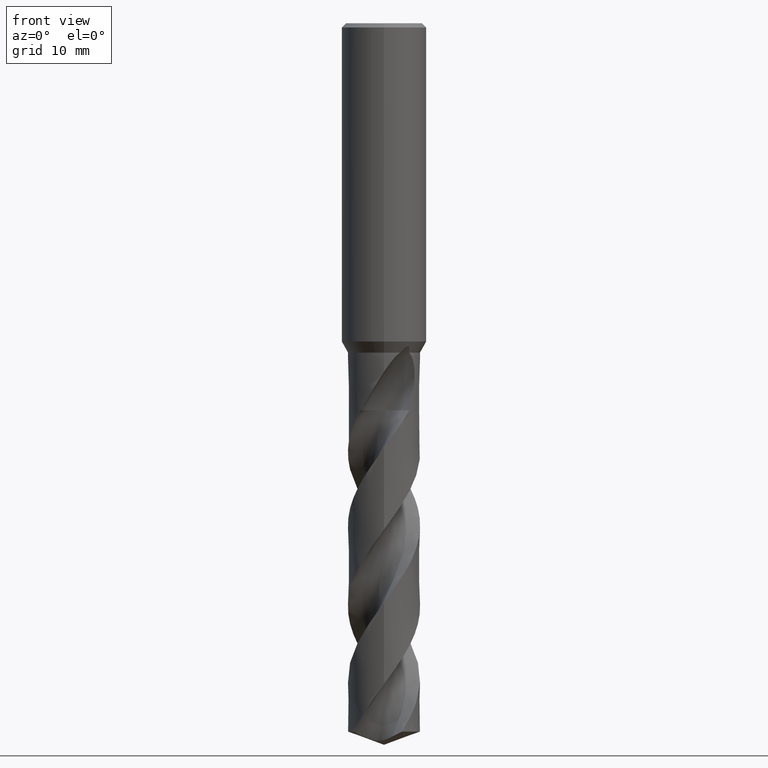
[diagram: clean part render]
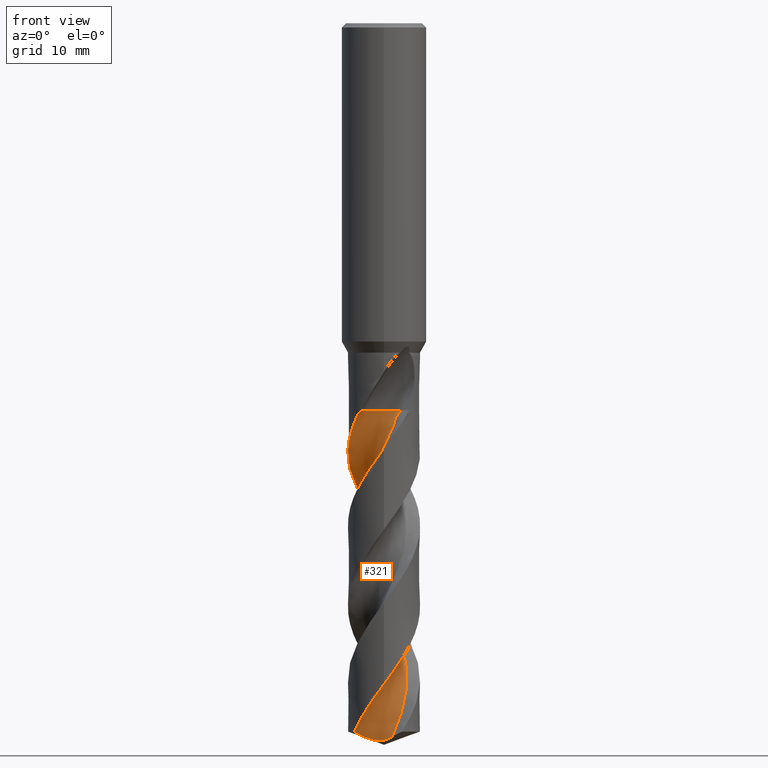
[diagram: same view with one face highlighted and labeled with its STEP entity id]
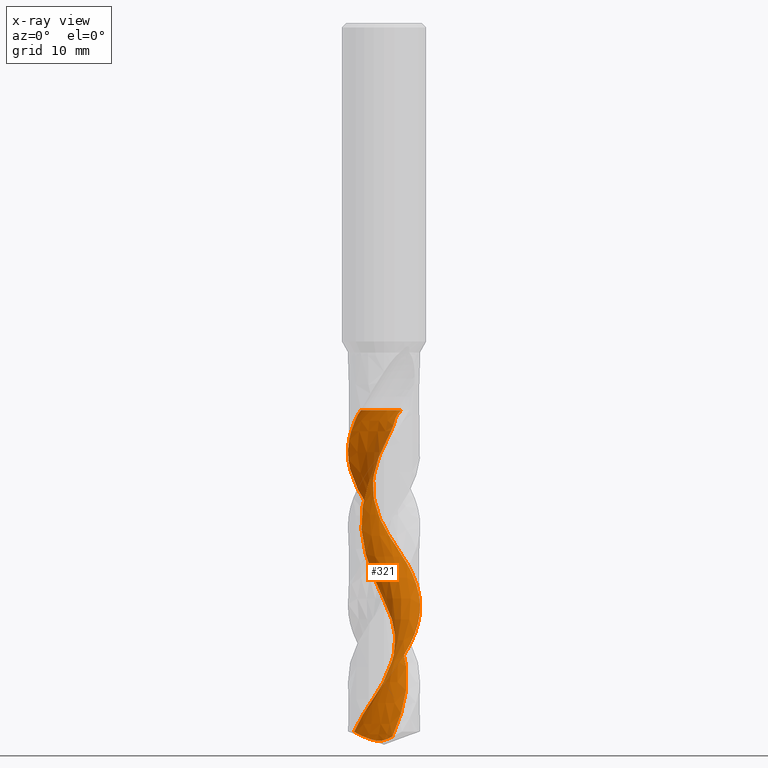
[diagram: x-ray of the same camera — body ghosted, the highlighted face saturated]
A machine part, front view. The second image highlights one B-rep face of the part: STEP entity #321.
The next image is the same camera in x-ray: the body ghosted, the highlighted face saturated — about 0% of this face is hidden behind the body in this view.
In plain terms, the highlighted face is a freeform B-spline surface patch.
Its self-contained STEP definition (entity closure, byte-faithful):
#285=VERTEX_POINT('',#800);
#321=ADVANCED_FACE('',(#838),#839,.F.);
#339=EDGE_CURVE('',#389,#591,#858,.T.);
#359=VERTEX_POINT('',#881);
#389=VERTEX_POINT('',#915);
#393=EDGE_CURVE('',#435,#551,#919,.T.);
#423=EDGE_CURVE('',#519,#359,#951,.T.);
#435=VERTEX_POINT('',#963);
#471=EDGE_CURVE('',#285,#389,#1001,.T.);
#477=EDGE_CURVE('',#359,#435,#1007,.T.);
#479=VERTEX_POINT('',#1009);
#499=EDGE_CURVE('',#551,#479,#1031,.T.);
#519=VERTEX_POINT('',#1052);
#551=VERTEX_POINT('',#1087);
#591=VERTEX_POINT('',#1130);
#617=EDGE_CURVE('',#591,#519,#1158,.T.);
#699=EDGE_CURVE('',#479,#285,#1252,.T.);
#800=CARTESIAN_POINT('',(0.412014399991042,-1.55504023704718,-54.7162));
#838=FACE_OUTER_BOUND('',#2068,.T.);
#839=B_SPLINE_SURFACE_WITH_KNOTS('',3,3,((#2069,#2070,#2071,#2072,#2073,#2074,#2075,#2076,#2077,#2078,#2079,#2080,#2081,#2082,#2083,#2084,#2085,#2086,#2087,#2088,#2089,#2090,#2091,#2092,#2093,#2094,#2095,#2096,#2097,#2098,#2099,#2100,#2101,#2102,#2103,#2104,#2105,#2106,#2107,#2108,#2109,#2110,#2111,#2112,#2113,#2114,#2115,#2116,#2117,#2118,#2119,#2120,#2121,#2122,#2123,#2124),(#2125,#2126,#2127,#2128,#2129,#2130,#2131,#2132,#2133,#2134,#2135,#2136,#2137,#2138,#2139,#2140,#2141,#2142,#2143,#2144,#2145,#2146,#2147,#2148,#2149,#2150,#2151,#2152,#2153,#2154,#2155,#2156,#2157,#2158,#2159,#2160,#2161,#2162,#2163,#2164,#2165,#2166,#2167,#2168,#2169,#2170,#2171,#2172,#2173,#2174,#2175,#2176,#2177,#2178,#2179,#2180),(#2181,#2182,#2183,#2184,#2185,#2186,#2187,#2188,#2189,#2190,#2191,#2192,#2193,#2194,#2195,#2196,#2197,#2198,#2199,#2200,#2201,#2202,#2203,#2204,#2205,#2206,#2207,#2208,#2209,#2210,#2211,#2212,#2213,#2214,#2215,#2216,#2217,#2218,#2219,#2220,#2221,#2222,#2223,#2224,#2225,#2226,#2227,#2228,#2229,#2230,#2231,#2232,#2233,#2234,#2235,#2236),(#2237,#2238,#2239,#2240,#2241,#2242,#2243,#2244,#2245,#2246,#2247,#2248,#2249,#2250,#2251,#2252,#2253,#2254,#2255,#2256,#2257,#2258,#2259,#2260,#2261,#2262,#2263,#2264,#2265,#2266,#2267,#2268,#2269,#2270,#2271,#2272,#2273,#2274,#2275,#2276,#2277,#2278,#2279,#2280,#2281,#2282,#2283,#2284,#2285,#2286,#2287,#2288,#2289,#2290,#2291,#2292),(#2293,#2294,#2295,#2296,#2297,#2298,#2299,#2300,#2301,#2302,#2303,#2304,#2305,#2306,#2307,#2308,#2309,#2310,#2311,#2312,#2313,#2314,#2315,#2316,#2317,#2318,#2319,#2320,#2321,#2322,#2323,#2324,#2325,#2326,#2327,#2328,#2329,#2330,#2331,#2332,#2333,#2334,#2335,#2336,#2337,#2338,#2339,#2340,#2341,#2342,#2343,#2344,#2345,#2346,#2347,#2348),(#2349,#2350,#2351,#2352,#2353,#2354,#2355,#2356,#2357,#2358,#2359,#2360,#2361,#2362,#2363,#2364,#2365,#2366,#2367,#2368,#2369,#2370,#2371,#2372,#2373,#2374,#2375,#2376,#2377,#2378,#2379,#2380,#2381,#2382,#2383,#2384,#2385,#2386,#2387,#2388,#2389,#2390,#2391,#2392,#2393,#2394,#2395,#2396,#2397,#2398,#2399,#2400,#2401,#2402,#2403,#2404),(#2405,#2406,#2407,#2408,#2409,#2410,#2411,#2412,#2413,#2414,#2415,#2416,#2417,#2418,#2419,#2420,#2421,#2422,#2423,#2424,#2425,#2426,#2427,#2428,#2429,#2430,#2431,#2432,#2433,#2434,#2435,#2436,#2437,#2438,#2439,#2440,#2441,#2442,#2443,#2444,#2445,#2446,#2447,#2448,#2449,#2450,#2451,#2452,#2453,#2454,#2455,#2456,#2457,#2458,#2459,#2460),(#2461,#2462,#2463,#2464,#2465,#2466,#2467,#2468,#2469,#2470,#2471,#2472,#2473,#2474,#2475,#2476,#2477,#2478,#2479,#2480,#2481,#2482,#2483,#2484,#2485,#2486,#2487,#2488,#2489,#2490,#2491,#2492,#2493,#2494,#2495,#2496,#2497,#2498,#2499,#2500,#2501,#2502,#2503,#2504,#2505,#2506,#2507,#2508,#2509,#2510,#2511,#2512,#2513,#2514,#2515,#2516),(#2517,#2518,#2519,#2520,#2521,#2522,#2523,#2524,#2525,#2526,#2527,#2528,#2529,#2530,#2531,#2532,#2533,#2534,#2535,#2536,#2537,#2538,#2539,#2540,#2541,#2542,#2543,#2544,#2545,#2546,#2547,#2548,#2549,#2550,#2551,#2552,#2553,#2554,#2555,#2556,#2557,#2558,#2559,#2560,#2561,#2562,#2563,#2564,#2565,#2566,#2567,#2568,#2569,#2570,#2571,#2572),(#2573,#2574,#2575,#2576,#2577,#2578,#2579,#2580,#2581,#2582,#2583,#2584,#2585,#2586,#2587,#2588,#2589,#2590,#2591,#2592,#2593,#2594,#2595,#2596,#2597,#2598,#2599,#2600,#2601,#2602,#2603,#2604,#2605,#2606,#2607,#2608,#2609,#2610,#2611,#2612,#2613,#2614,#2615,#2616,#2617,#2618,#2619,#2620,#2621,#2622,#2623,#2624,#2625,#2626,#2627,#2628),(#2629,#2630,#2631,#2632,#2633,#2634,#2635,#2636,#2637,#2638,#2639,#2640,#2641,#2642,#2643,#2644,#2645,#2646,#2647,#2648,#2649,#2650,#2651,#2652,#2653,#2654,#2655,#2656,#2657,#2658,#2659,#2660,#2661,#2662,#2663,#2664,#2665,#2666,#2667,#2668,#2669,#2670,#2671,#2672,#2673,#2674,#2675,#2676,#2677,#2678,#2679,#2680,#2681,#2682,#2683,#2684)),.UNSPECIFIED.,.F.,.F.,.F.,(4,1,1,1,1,1,1,1,4),(4,1,2,1,2,2,2,2,2,1,2,1,2,1,2,1,2,1,2,1,2,1,2,1,2,1,2,1,2,1,2,1,2,2,4),(-1.16802619425531E-016,0.392700999111276,0.785401998222551,1.17810299733383,1.5708039964451,1.96350499555638,2.35620599466765,2.74890699377893,3.14160799289021),(0.0,1.0584556409962,2.11691128199241,3.17536692298861,4.23382256398481,6.35073384597722,8.46764512796963,10.584556409962,12.7014676919544,14.8183789739468,16.9352902559393,19.0522015379317,21.1691128199241,23.2860241019165,25.4029353839089,27.5198466659013,29.6367579478937,31.7536692298861,33.8705805118785,35.9874917938709,38.1044030758633,40.2213143578557,42.3382256398481,44.4551369218406,46.572048203833,48.6889594858254,50.8058707678178,52.9227820498102,55.0396933318026,57.156604613795,59.2735158957874,61.3904271777798,63.5073384597722,65.6242497417646,67.741161023757),.UNSPECIFIED.);
#858=B_SPLINE_CURVE_WITH_KNOTS('',3,(#2726,#2727,#2728,#2729,#2730,#2731,#2732,#2733,#2734,#2735,#2736,#2737,#2738,#2739,#2740,#2741,#2742,#2743,#2744,#2745,#2746,#2747,#2748,#2749,#2750,#2751,#2752,#2753,#2754,#2755,#2756,#2757,#2758,#2759,#2760,#2761,#2762,#2763,#2764,#2765,#2766,#2767,#2768,#2769,#2770,#2771,#2772,#2773,#2774,#2775,#2776,#2777,#2778,#2779,#2780,#2781),.UNSPECIFIED.,.F.,.F.,(4,1,2,1,2,2,2,2,2,1,2,1,2,1,2,1,2,1,2,1,2,1,2,1,2,1,2,1,2,1,2,1,2,2,4),(0.0,1.0584556409962,2.11691128199241,3.17536692298861,4.23382256398481,6.35073384597722,8.46764512796963,10.584556409962,12.7014676919544,14.8183789739468,16.9352902559393,19.0522015379317,21.1691128199241,23.2860241019165,25.4029353839089,27.5198466659013,29.6367579478937,31.7536692298861,33.8705805118785,35.9874917938709,38.1044030758633,40.2213143578557,42.3382256398481,44.4551369218406,46.572048203833,48.6889594858254,50.8058707678178,52.9227820498102,55.0396933318026,57.156604613795,59.2735158957874,61.3904271777798,63.5073384597722,65.6242497417646,67.741161023757),.UNSPECIFIED.);
#881=CARTESIAN_POINT('',(-4.20163265179172,-2.89072362210532,-100.143751805242));
#915=CARTESIAN_POINT('',(2.40416305596356,-2.52583694403645,-54.7162));
#919=B_SPLINE_CURVE_WITH_KNOTS('',3,(#3120,#3121,#3122,#3123,#3124,#3125,#3126,#3127,#3128,#3129,#3130,#3131,#3132,#3133,#3134,#3135,#3136,#3137,#3138,#3139,#3140,#3141,#3142,#3143,#3144,#3145,#3146,#3147,#3148,#3149,#3150,#3151,#3152,#3153,#3154,#3155,#3156,#3157,#3158,#3159,#3160,#3161,#3162,#3163,#3164,#3165,#3166,#3167,#3168,#3169,#3170,#3171,#3172,#3173,#3174,#3175,#3176,#3177,#3178,#3179,#3180,#3181,#3182,#3183,#3184,#3185,#3186,#3187,#3188,#3189,#3190,#3191,#3192,#3193,#3194,#3195,#3196,#3197),.UNSPECIFIED.,.F.,.F.,(4,2,2,2,2,2,2,2,2,2,2,2,2,2,2,2,2,2,2,2,2,2,2,2,2,2,2,2,2,2,2,2,2,2,2,2,2,2,4),(0.0,2.26591834238043,4.75245560777625,5.37485233014804,8.0506303341988,9.19278370230962,12.0115618256693,13.1937105294441,15.7156891345217,16.3283264190488,18.9554236594136,21.2100177283507,23.2909805826317,23.6385445369638,26.165923040927,27.543861704137,30.378805607455,31.4620597053915,34.2939686486579,34.9794848804535,37.8144065928469,38.9446296965847,41.7731624896859,42.1235409111548,44.5287580583477,45.2655472885215,45.9719978200671,50.4329579470356,51.9267864510947,53.0302101485412,53.2156108229133,53.9011258477095,54.6508997926238,55.1148626765171,55.6688525888441,56.1279843150173,56.671307147104,57.6738302912634,59.979403547771),.UNSPECIFIED.);
#951=B_SPLINE_CURVE_WITH_KNOTS('',3,(#3388,#3389,#3390,#3391,#3392,#3393,#3394,#3395,#3396,#3397,#3398,#3399,#3400,#3401,#3402,#3403,#3404,#3405,#3406,#3407),.UNSPECIFIED.,.F.,.F.,(4,2,2,2,2,2,2,2,2,4),(0.0,2.10448590423282,3.55116716611338,4.88574603580623,6.32300956068626,7.90979393045915,9.74785461181102,11.8409803284507,13.4221876337023,15.0073987800078),.UNSPECIFIED.);
#963=CARTESIAN_POINT('',(-1.41528039503262E-011,-5.09998733846747,-93.4149383870123));
#1001=CIRCLE('',#3905,3.4);
#1007=B_SPLINE_CURVE_WITH_KNOTS('',3,(#3912,#3913,#3914,#3915,#3916,#3917,#3918,#3919,#3920,#3921,#3922,#3923,#3924,#3925,#3926,#3927,#3928,#3929,#3930,#3931,#3932,#3933,#3934,#3935,#3936,#3937,#3938,#3939,#3940,#3941,#3942,#3943,#3944,#3945,#3946,#3947,#3948,#3949,#3950,#3951,#3952,#3953,#3954,#3955,#3956,#3957,#3958,#3959,#3960,#3961,#3962,#3963,#3964,#3965,#3966,#3967,#3968,#3969,#3970,#3971,#3972,#3973,#3974,#3975,#3976,#3977,#3978,#3979,#3980,#3981,#3982,#3983,#3984,#3985,#3986,#3987,#3988,#3989),.UNSPECIFIED.,.F.,.F.,(4,2,2,2,2,2,2,2,2,2,2,2,2,2,2,2,2,2,2,2,2,2,2,2,2,2,2,2,2,2,2,2,2,2,2,2,2,2,4),(0.0,2.26591834238043,4.75245560777625,5.37485233014804,8.0506303341988,9.19278370230962,12.0115618256693,13.1937105294441,15.7156891345217,16.3283264190488,18.9554236594136,21.2100177283507,23.2909805826317,23.6385445369638,26.165923040927,27.543861704137,30.378805607455,31.4620597053915,34.2939686486579,34.9794848804535,37.8144065928469,38.9446296965847,41.7731624896859,42.1235409111548,44.5287580583477,45.2655472885215,45.9719978200671,50.4329579470356,51.9267864510947,53.0302101485412,53.2156108229133,53.9011258477095,54.6508997926238,55.1148626765171,55.6688525888441,56.1279843150173,56.671307147104,57.6738302912634,59.979403547771),.UNSPECIFIED.);
#1009=CARTESIAN_POINT('',(-3.24976651141065,-3.93041292072291,-54.7162));
#1031=B_SPLINE_CURVE_WITH_KNOTS('',3,(#4035,#4036,#4037,#4038,#4039,#4040,#4041,#4042,#4043,#4044,#4045,#4046,#4047,#4048,#4049,#4050,#4051,#4052,#4053,#4054,#4055,#4056,#4057,#4058,#4059,#4060,#4061,#4062,#4063,#4064,#4065,#4066,#4067,#4068,#4069,#4070,#4071,#4072,#4073,#4074,#4075,#4076,#4077,#4078,#4079,#4080,#4081,#4082,#4083,#4084,#4085,#4086,#4087,#4088,#4089,#4090,#4091,#4092,#4093,#4094,#4095,#4096,#4097,#4098,#4099,#4100,#4101,#4102,#4103,#4104,#4105,#4106,#4107,#4108,#4109,#4110,#4111,#4112),.UNSPECIFIED.,.F.,.F.,(4,2,2,2,2,2,2,2,2,2,2,2,2,2,2,2,2,2,2,2,2,2,2,2,2,2,2,2,2,2,2,2,2,2,2,2,2,2,4),(0.0,2.26591834238043,4.75245560777625,5.37485233014804,8.0506303341988,9.19278370230962,12.0115618256693,13.1937105294441,15.7156891345217,16.3283264190488,18.9554236594136,21.2100177283507,23.2909805826317,23.6385445369638,26.165923040927,27.543861704137,30.378805607455,31.4620597053915,34.2939686486579,34.9794848804535,37.8144065928469,38.9446296965847,41.7731624896859,42.1235409111548,44.5287580583477,45.2655472885215,45.9719978200671,50.4329579470356,51.9267864510947,53.0302101485412,53.2156108229133,53.9011258477095,54.6508997926238,55.1148626765171,55.6688525888441,56.1279843150173,56.671307147104,57.6738302912634,59.979403547771),.UNSPECIFIED.);
#1052=CARTESIAN_POINT('',(2.35477918539484E-013,-1.80690421220556,-101.342340650587));
#1087=CARTESIAN_POINT('',(4.34199891633546E-012,5.09994624439276,-71.5760053127162));
#1130=CARTESIAN_POINT('',(1.18663935702709,-2.99050292258315,-100.828987173046));
#1158=B_SPLINE_CURVE_WITH_KNOTS('',3,(#4453,#4454,#4455,#4456,#4457,#4458,#4459,#4460,#4461,#4462,#4463,#4464,#4465,#4466,#4467,#4468,#4469,#4470,#4471,#4472),.UNSPECIFIED.,.F.,.F.,(4,2,2,2,2,2,2,2,2,4),(0.0,2.10448590423282,3.55116716611338,4.88574603580623,6.32300956068626,7.90979393045915,9.74785461181102,11.8409803284507,13.4221876337023,15.0073987800078),.UNSPECIFIED.);
#1252=CIRCLE('',#4788,3.4);
#2068=EDGE_LOOP('',(#5380,#5381,#5382,#5383,#5384,#5385,#5386,#5387));
#2069=CARTESIAN_POINT('',(-2.40416305596355,-7.33416305596355,-54.7162));
#2070=CARTESIAN_POINT('',(-2.65709224455337,-7.3157544318808,-54.9619883838942));
#2071=CARTESIAN_POINT('',(-3.16870411540748,-7.22592464264196,-55.4576897988237));
#2072=CARTESIAN_POINT('',(-3.6734820252739,-6.99414529279835,-55.9549311755855));
#2073=CARTESIAN_POINT('',(-4.15512365168478,-6.67618245775551,-56.4443568195277));
#2074=CARTESIAN_POINT('',(-4.61719436341909,-6.34303491659236,-56.9323186393156));
#2075=CARTESIAN_POINT('',(-5.04740047407196,-5.98907253702698,-57.4236850504807));
#2076=CARTESIAN_POINT('',(-5.67097569007555,-5.44700941640612,-58.1668501689171));
#2077=CARTESIAN_POINT('',(-6.04723078524585,-5.03686824076888,-58.6616670264124));
#2078=CARTESIAN_POINT('',(-6.69173234002055,-4.12659998931264,-59.6439517886961));
#2079=CARTESIAN_POINT('',(-6.96783283971769,-3.64038024102274,-60.1357044509286));
#2080=CARTESIAN_POINT('',(-7.41230024620554,-2.62144262767866,-61.1222413464048));
#2081=CARTESIAN_POINT('',(-7.58107024114078,-2.0894047276893,-61.6151284141142));
#2082=CARTESIAN_POINT('',(-7.79907284836723,-0.998829308752349,-62.5997813947954));
#2083=CARTESIAN_POINT('',(-7.85125534432161,-0.442426887896436,-63.0924005193335));
#2084=CARTESIAN_POINT('',(-7.83113497558811,0.670801652866133,-64.0778111294575));
#2085=CARTESIAN_POINT('',(-7.69825640485356,1.77903960255668,-65.0626643471477));
#2086=CARTESIAN_POINT('',(-7.33651261938756,2.83596524275772,-66.0485816696228));
#2087=CARTESIAN_POINT('',(-6.85781567946793,3.84174188570839,-67.0336774915473));
#2088=CARTESIAN_POINT('',(-6.27859903220601,4.79627470816725,-68.0181689571326));
#2089=CARTESIAN_POINT('',(-5.51282228181493,5.60984397746329,-69.003992873854));
#2090=CARTESIAN_POINT('',(-4.66199992928391,6.32872982084552,-69.9892613292843));
#2091=CARTESIAN_POINT('',(-3.74070316571654,6.95940632809538,-70.9738993464102));
#2092=CARTESIAN_POINT('',(-2.70753548785533,7.38455302265582,-71.9597437516913));
#2093=CARTESIAN_POINT('',(-1.63592164589502,7.6883521163569,-72.9449514252332));
#2094=CARTESIAN_POINT('',(-0.53649545604536,7.8827602647672,-73.9295440967437));
#2095=CARTESIAN_POINT('',(0.580064039514625,7.84382991666162,-74.9153856983103));
#2096=CARTESIAN_POINT('',(1.68157854764112,7.67848529535367,-75.9006120174695));
#2097=CARTESIAN_POINT('',(2.76328981126337,7.40200994773752,-76.885217097495));
#2098=CARTESIAN_POINT('',(3.76433513003697,6.9059127837903,-77.8710588003406));
#2099=CARTESIAN_POINT('',(4.69952955451935,6.30087777026626,-78.8562807530354));
#2100=CARTESIAN_POINT('',(5.57084319215515,5.6027802997551,-79.8408833734481));
#2101=CARTESIAN_POINT('',(6.27807482717549,4.73789499305141,-80.826724565098));
#2102=CARTESIAN_POINT('',(6.88037661795695,3.80093696420032,-81.8119458723594));
#2103=CARTESIAN_POINT('',(7.38609479254166,2.80555881309275,-82.7965481016668));
#2104=CARTESIAN_POINT('',(7.67353810134094,1.72593916512739,-83.782390756016));
#2105=CARTESIAN_POINT('',(7.83566392624466,0.623954362749503,-84.7676150292724));
#2106=CARTESIAN_POINT('',(7.88570463782038,-0.49140372462436,-85.7522179766004));
#2107=CARTESIAN_POINT('',(7.70215450108022,-1.5934557667892,-86.7380525618363));
#2108=CARTESIAN_POINT('',(7.39522262143149,-2.66418596926375,-87.7232627607056));
#2109=CARTESIAN_POINT('',(6.98067286628361,-3.70086321079617,-88.7078629018431));
#2110=CARTESIAN_POINT('',(6.35880489690473,-4.62903698372493,-89.6937268173907));
#2111=CARTESIAN_POINT('',(5.63744677963558,-5.4777483430382,-90.678984803996));
#2112=CARTESIAN_POINT('',(4.83212547143661,-6.25102007116712,-91.6635925147358));
#2113=CARTESIAN_POINT('',(3.88281093461899,-6.84003059485425,-92.6493647337279));
#2114=CARTESIAN_POINT('',(2.8756920926789,-7.31575060373574,-93.6344786156766));
#2115=CARTESIAN_POINT('',(1.82305737235658,-7.68810047326367,-94.6190652123804));
#2116=CARTESIAN_POINT('',(0.715017029861006,-7.83258435263518,-95.6050973027484));
#2117=CARTESIAN_POINT('',(-0.398934109154412,-7.84948551567109,-96.5906148165187));
#2118=CARTESIAN_POINT('',(-1.51119541447053,-7.75389049249511,-97.5753058786868));
#2119=CARTESIAN_POINT('',(-2.5798765883342,-7.43042146409729,-98.5608471895587));
#2120=CARTESIAN_POINT('',(-3.60187810461693,-6.98995203594288,-99.5455896410573));
#2121=CARTESIAN_POINT('',(-4.08930829776231,-6.71659230918825,-100.038011550294));
#2122=CARTESIAN_POINT('',(-4.99348750402325,-6.06779637604903,-101.022927750755));
#2123=CARTESIAN_POINT('',(-5.41178936417184,-5.70137782360298,-101.514534440248));
#2124=CARTESIAN_POINT('',(-5.79053905044729,-5.29942949940565,-102.006912563355));
#2125=CARTESIAN_POINT('',(-2.71885547865695,-7.01944399006192,-54.7161999999997));
#2126=CARTESIAN_POINT('',(-2.9712552096983,-7.00050595355236,-54.9619729348531));
#2127=CARTESIAN_POINT('',(-3.47514397968678,-6.90273042720417,-55.4581189743825));
#2128=CARTESIAN_POINT('',(-3.95699703064321,-6.65047871921215,-55.9559474457647));
#2129=CARTESIAN_POINT('',(-4.40630526368486,-6.30822079952262,-56.4449001716482));
#2130=CARTESIAN_POINT('',(-4.83703729649001,-5.95493750652106,-56.9322118146168));
#2131=CARTESIAN_POINT('',(-5.23907283966516,-5.58713910809663,-57.4234203753817));
#2132=CARTESIAN_POINT('',(-5.82288304299804,-5.02767560720242,-58.1671881202388));
#2133=CARTESIAN_POINT('',(-6.16992208314726,-4.60782033973965,-58.6623056095926));
#2134=CARTESIAN_POINT('',(-6.75079909587838,-3.68428062696016,-59.6441778286486));
#2135=CARTESIAN_POINT('',(-6.99538124687337,-3.19506091333287,-60.1358127937299));
#2136=CARTESIAN_POINT('',(-7.37696500896089,-2.17667384165799,-61.1225336050888));
#2137=CARTESIAN_POINT('',(-7.5145108160941,-1.64821148283086,-61.6154586227938));
#2138=CARTESIAN_POINT('',(-7.67073504626703,-0.571499451651741,-62.6000322057628));
#2139=CARTESIAN_POINT('',(-7.69301340323306,-0.0252264042216115,-63.0926525774141));
#2140=CARTESIAN_POINT('',(-7.61501961709192,1.0611740614165,-64.0780895057713));
#2141=CARTESIAN_POINT('',(-7.42836180613429,2.13701365146237,-65.0628914967817));
#2142=CARTESIAN_POINT('',(-7.02054186978011,3.15103588411115,-66.0489054258579));
#2143=CARTESIAN_POINT('',(-6.49995450655716,4.10827917824321,-67.0339836585393));
#2144=CARTESIAN_POINT('',(-5.88500942709478,5.01094489127604,-68.0183736227244));
#2145=CARTESIAN_POINT('',(-5.09498547091586,5.76642420633543,-69.0042812130092));
#2146=CARTESIAN_POINT('',(-4.22605098906006,6.42387801011189,-69.9895561331427));
#2147=CARTESIAN_POINT('',(-3.29360855251275,6.99259966942932,-70.9741129932085));
#2148=CARTESIAN_POINT('',(-2.26231511141286,7.35481944036201,-71.960043937487));
#2149=CARTESIAN_POINT('',(-1.19954662417065,7.59517580769408,-72.9452495764523));
#2150=CARTESIAN_POINT('',(-0.11552824890684,7.72854669890825,-73.9297548248837));
#2151=CARTESIAN_POINT('',(0.973364752586178,7.63306985567374,-74.9156825488465));
#2152=CARTESIAN_POINT('',(2.04064890356913,7.41358259059186,-75.9009094586892));
#2153=CARTESIAN_POINT('',(3.08314353761812,7.08786207738203,-76.8854288282946));
#2154=CARTESIAN_POINT('',(4.03565818430268,6.55166850846581,-77.8713566543989));
#2155=CARTESIAN_POINT('',(4.91733584344323,5.91143543408428,-78.8565786070936));
#2156=CARTESIAN_POINT('',(5.73261100094276,5.18465785637092,-79.8410951423168));
#2157=CARTESIAN_POINT('',(6.37909306237353,4.30326809180569,-80.8270223990073));
#2158=CARTESIAN_POINT('',(6.9181234086041,3.35632467260033,-81.8122436406372));
#2159=CARTESIAN_POINT('',(7.36096209297478,2.35793893312687,-82.7967597891591));
#2160=CARTESIAN_POINT('',(7.58625764042279,1.28834650901511,-83.7826886830758));
#2161=CARTESIAN_POINT('',(7.68662779677344,0.203367690793845,-84.7679132188582));
#2162=CARTESIAN_POINT('',(7.67814799600112,-0.888789570843291,-85.7524299789842));
#2163=CARTESIAN_POINT('',(7.44212123750556,-1.9560683963657,-86.7383497402744));
#2164=CARTESIAN_POINT('',(7.08594933822442,-2.98583012588851,-87.7235586265137));
#2165=CARTESIAN_POINT('',(6.62766254443421,-3.97723081373415,-88.7080729173077));
#2166=CARTESIAN_POINT('',(5.97233548287929,-4.85207690636367,-89.6940258631978));
#2167=CARTESIAN_POINT('',(5.22302205299285,-5.64314870972672,-90.6792877876933));
#2168=CARTESIAN_POINT('',(4.39653902004118,-6.35712957185035,-91.6638079750001));
#2169=CARTESIAN_POINT('',(3.43874929819268,-6.88377609473842,-92.649657265587));
#2170=CARTESIAN_POINT('',(2.42994149512302,-7.29548922524851,-93.6347602527061));
#2171=CARTESIAN_POINT('',(1.38247889289621,-7.60509954729728,-94.6192664020527));
#2172=CARTESIAN_POINT('',(0.29246856422303,-7.68919137127053,-95.6054083763207));
#2173=CARTESIAN_POINT('',(-0.796547230210228,-7.64697070724131,-96.5909503050106));
#2174=CARTESIAN_POINT('',(-1.87817838815448,-7.49639350025273,-97.5755367592738));
#2175=CARTESIAN_POINT('',(-2.90574828945736,-7.12562565895088,-98.561119807203));
#2176=CARTESIAN_POINT('',(-3.88105252286383,-6.64187988342642,-99.5458353497849));
#2177=CARTESIAN_POINT('',(-4.343067150476,-6.34956705376776,-100.038271931818));
#2178=CARTESIAN_POINT('',(-5.1921958651809,-5.66827696288973,-101.023247725685));
#2179=CARTESIAN_POINT('',(-5.58231430927603,-5.28917626353479,-101.51477608991));
#2180=CARTESIAN_POINT('',(-5.93247855486218,-4.87760901889488,-102.00717836541));
#2181=CARTESIAN_POINT('',(-3.22295549838399,-6.26499673908634,-54.7162));
#2182=CARTESIAN_POINT('',(-3.47408601046751,-6.24521064879678,-54.9619475237671));
#2183=CARTESIAN_POINT('',(-3.95937209369111,-6.13461824437987,-55.4588248295816));
#2184=CARTESIAN_POINT('',(-4.38724440644396,-5.85054609195832,-55.9576188847719));
#2185=CARTESIAN_POINT('',(-4.76223784837445,-5.47256655116133,-56.4457938079608));
#2186=CARTESIAN_POINT('',(-5.12229834674266,-5.09148274253434,-56.9320361186478));
#2187=CARTESIAN_POINT('',(-5.46250263572946,-4.70722043442519,-57.4229850804673));
#2188=CARTESIAN_POINT('',(-5.95987995028938,-4.12877662904769,-58.1677439206969));
#2189=CARTESIAN_POINT('',(-6.24463637341032,-3.70111514373613,-58.6633558676411));
#2190=CARTESIAN_POINT('',(-6.69301345444294,-2.77633948379575,-59.6445495966002));
#2191=CARTESIAN_POINT('',(-6.87337920139768,-2.2936548594272,-60.1359909874231));
#2192=CARTESIAN_POINT('',(-7.12944113913791,-1.30137505192979,-61.1230142715471));
#2193=CARTESIAN_POINT('',(-7.20597351674383,-0.792479004541035,-61.6160017042409));
#2194=CARTESIAN_POINT('',(-7.2441800288908,0.231945067944301,-62.6004447141164));
#2195=CARTESIAN_POINT('',(-7.21069073595421,0.746071858929399,-63.0930671182354));
#2196=CARTESIAN_POINT('',(-7.02764306981269,1.75581330268988,-64.0785473583389));
#2197=CARTESIAN_POINT('',(-6.74633306242159,2.74548379598655,-65.0632651015484));
#2198=CARTESIAN_POINT('',(-6.26344128398799,3.65539446164139,-66.0494378531085));
#2199=CARTESIAN_POINT('',(-5.67839070868299,4.49893324195365,-67.0344872516875));
#2200=CARTESIAN_POINT('',(-5.01262945244343,5.28367864317381,-68.0187102141051));
#2201=CARTESIAN_POINT('',(-4.19722157400263,5.91336026359754,-69.0047554255133));
#2202=CARTESIAN_POINT('',(-3.31649967236863,6.44077337961658,-69.9900410026928));
#2203=CARTESIAN_POINT('',(-2.38640784667063,6.8811791683021,-70.9744644000047));
#2204=CARTESIAN_POINT('',(-1.38388577647379,7.11831689155888,-71.9605375803716));
#2205=CARTESIAN_POINT('',(-0.364033129933791,7.23533202466608,-72.9457400048378));
#2206=CARTESIAN_POINT('',(0.664903775571627,7.25278121437172,-73.9301013897684));
#2207=CARTESIAN_POINT('',(1.67598900749058,7.05523715200185,-74.9161707360951));
#2208=CARTESIAN_POINT('',(2.6532962888725,6.74109953626924,-75.9013986895692));
#2209=CARTESIAN_POINT('',(3.5977911611934,6.33250449305807,-76.8857770274971));
#2210=CARTESIAN_POINT('',(4.43732003563871,5.73543384225074,-77.8718465514178));
#2211=CARTESIAN_POINT('',(5.19798972101525,5.04610112349513,-78.8570684576591));
#2212=CARTESIAN_POINT('',(5.88980645223989,4.28425988099464,-79.8414434454196));
#2213=CARTESIAN_POINT('',(6.40825177836988,3.39402607382686,-80.8275122395312));
#2214=CARTESIAN_POINT('',(6.81679499425196,2.45227672131548,-81.8127333734889));
#2215=CARTESIAN_POINT('',(7.13270520667119,1.47288205907862,-82.7971079291403));
#2216=CARTESIAN_POINT('',(7.23771886069047,0.448053701026812,-83.7831787120332));
#2217=CARTESIAN_POINT('',(7.22136631162054,-0.57836234483676,-84.7684036093886));
#2218=CARTESIAN_POINT('',(7.10509628804985,-1.60085621206551,-85.7527786549828));
#2219=CARTESIAN_POINT('',(6.77796639883815,-2.57773524676808,-86.7388385370412));
#2220=CARTESIAN_POINT('',(6.33962684892592,-3.50599631648617,-87.7240451961317));
#2221=CARTESIAN_POINT('',(5.81188927167579,-4.38947029793248,-88.7084182935505));
#2222=CARTESIAN_POINT('',(5.11086452985614,-5.14437811394825,-89.6945177940169));
#2223=CARTESIAN_POINT('',(4.32857341532741,-5.80907817355892,-90.6797860011063));
#2224=CARTESIAN_POINT('',(3.4833536742476,-6.39608706443409,-91.6641624128929));
#2225=CARTESIAN_POINT('',(2.53341701249766,-6.79466162290085,-92.6501383324283));
#2226=CARTESIAN_POINT('',(1.54668519751207,-7.07771621691383,-93.635223508376));
#2227=CARTESIAN_POINT('',(0.53451391275476,-7.2639307084542,-94.6195972328759));
#2228=CARTESIAN_POINT('',(-0.495428298982956,-7.23443367718168,-95.6059200608248));
#2229=CARTESIAN_POINT('',(-1.51107333849046,-7.08391013585594,-96.5915020064398));
#2230=CARTESIAN_POINT('',(-2.50959262145051,-6.83557221325898,-97.5759164727444));
#2231=CARTESIAN_POINT('',(-3.43614834659687,-6.38657512690723,-98.5615682652816));
#2232=CARTESIAN_POINT('',(-4.30086818277351,-5.83486466592229,-99.5462393712866));
#2233=CARTESIAN_POINT('',(-4.70452546531906,-5.51476045616922,-100.038700086822));
#2234=CARTESIAN_POINT('',(-5.43065463943135,-4.79038729065086,-101.023774069761));
#2235=CARTESIAN_POINT('',(-5.75937484189209,-4.39713519729074,-101.515173354488));
#2236=CARTESIAN_POINT('',(-6.04855519428172,-3.97770151972315,-102.007615524025));
#2237=CARTESIAN_POINT('',(-3.4885122134362,-4.93000345458997,-54.7161999999997));
#2238=CARTESIAN_POINT('',(-3.73739684467053,-4.90977061361303,-54.9619316617852));
#2239=CARTESIAN_POINT('',(-4.18954325231377,-4.7920939424417,-55.4592654653785));
#2240=CARTESIAN_POINT('',(-4.52433688513842,-4.49490672532705,-55.9586622933982));
#2241=CARTESIAN_POINT('',(-4.77582765915568,-4.11008118963596,-56.4463516686536));
#2242=CARTESIAN_POINT('',(-5.02198268232338,-3.73103762403978,-56.9319264410616));
#2243=CARTESIAN_POINT('',(-5.26704202224038,-3.35945148211944,-57.4227133390198));
#2244=CARTESIAN_POINT('',(-5.63373341319324,-2.80431941796981,-58.1680908937388));
#2245=CARTESIAN_POINT('',(-5.82768939394876,-2.4015915716452,-58.6640115069949));
#2246=CARTESIAN_POINT('',(-6.09172064099762,-1.55116570959836,-59.6447816686476));
#2247=CARTESIAN_POINT('',(-6.18683826088654,-1.11440183935915,-60.1361022225207));
#2248=CARTESIAN_POINT('',(-6.28392225234475,-0.23036091660585,-61.1233143353051));
#2249=CARTESIAN_POINT('',(-6.28712618556517,0.216392731845621,-61.6163407191209));
#2250=CARTESIAN_POINT('',(-6.1917839968223,1.10060069520347,-62.6007022340073));
#2251=CARTESIAN_POINT('',(-6.0994581503056,1.53816139112408,-63.0933258964924));
#2252=CARTESIAN_POINT('',(-5.81481901915086,2.38135214523709,-64.0788331788093));
#2253=CARTESIAN_POINT('',(-5.45179302418915,3.19726263386467,-65.0634983170838));
#2254=CARTESIAN_POINT('',(-4.92462208192355,3.91978658095514,-66.0497702435688));
#2255=CARTESIAN_POINT('',(-4.31550211306695,4.56873315114495,-67.0348016054652));
#2256=CARTESIAN_POINT('',(-3.6470055927216,5.16087766019551,-68.0189203404304));
#2257=CARTESIAN_POINT('',(-2.86863160286604,5.60164044421767,-69.0050514621592));
#2258=CARTESIAN_POINT('',(-2.04622333239507,5.94205918393899,-69.9903436808883));
#2259=CARTESIAN_POINT('',(-1.19304938183325,6.20597711359703,-70.9746837631527));
#2260=CARTESIAN_POINT('',(-0.302206037238251,6.2862757403287,-71.9608457574469));
#2261=CARTESIAN_POINT('',(0.587363764942178,6.25698405289028,-72.9460461423281));
#2262=CARTESIAN_POINT('',(1.47341621486385,6.14539317631984,-73.9303177372422));
#2263=CARTESIAN_POINT('',(2.31807322964844,5.85105643673648,-74.9164755044388));
#2264=CARTESIAN_POINT('',(3.11634432546705,5.45739117189074,-75.9017040825135));
#2265=CARTESIAN_POINT('',(3.87744363600981,4.99019460568358,-76.885994414734));
#2266=CARTESIAN_POINT('',(4.52543523926793,4.37361204706381,-77.8721523450243));
#2267=CARTESIAN_POINT('',(5.0902101371545,3.68569539470165,-78.8573742795188));
#2268=CARTESIAN_POINT('',(5.59079332346999,2.94612995719928,-79.8416608693383));
#2269=CARTESIAN_POINT('',(5.92671131546578,2.11713853806585,-80.82781801219));
#2270=CARTESIAN_POINT('',(6.15738978423614,1.25749430504988,-81.8130391075411));
#2271=CARTESIAN_POINT('',(6.30828742105609,0.377283666324045,-82.7973252520348));
#2272=CARTESIAN_POINT('',(6.27229528729244,-0.516456680610348,-83.783484615024));
#2273=CARTESIAN_POINT('',(6.1277909723128,-1.39470368558643,-84.7687097413119));
#2274=CARTESIAN_POINT('',(5.90212132677987,-2.25877139909779,-85.7529963568723));
#2275=CARTESIAN_POINT('',(5.50062274018148,-3.05806448657423,-86.7391435947237));
#2276=CARTESIAN_POINT('',(5.0066709866188,-3.79848386892005,-87.7243490189027));
#2277=CARTESIAN_POINT('',(4.44463489910261,-4.49251018861774,-88.7086338573733));
#2278=CARTESIAN_POINT('',(3.74912699404367,-5.05495869798508,-89.6948248884395));
#2279=CARTESIAN_POINT('',(2.99367496297109,-5.52558510715978,-90.6800970123503));
#2280=CARTESIAN_POINT('',(2.19537607332128,-5.92586336369535,-91.664383666185));
#2281=CARTESIAN_POINT('',(1.32984313338126,-6.15144679119383,-92.6504386598987));
#2282=CARTESIAN_POINT('',(0.447563912386229,-6.26886204636511,-93.63551268198));
#2283=CARTESIAN_POINT('',(-0.444860190136349,-6.30431716930602,-94.6198037807283));
#2284=CARTESIAN_POINT('',(-1.3263462065078,-6.15187580077181,-95.6062394536236));
#2285=CARTESIAN_POINT('',(-2.17813276371842,-5.89337029678218,-96.5918464410252));
#2286=CARTESIAN_POINT('',(-3.00534465163522,-5.55725317324781,-97.5761535133041));
#2287=CARTESIAN_POINT('',(-3.74699379291959,-5.05782295691854,-98.5618481858518));
#2288=CARTESIAN_POINT('',(-4.41943576193173,-4.47539922481979,-99.5464916180986));
#2289=CARTESIAN_POINT('',(-4.72625994647301,-4.15027817727765,-100.03896741246));
#2290=CARTESIAN_POINT('',(-5.25718804447372,-3.43680283657927,-101.024102597993));
#2291=CARTESIAN_POINT('',(-5.49269071327914,-3.05918372898796,-101.515421401669));
#2292=CARTESIAN_POINT('',(-5.69283569929747,-2.66385563645683,-102.00788842387));
#2293=CARTESIAN_POINT('',(-3.22297225515765,-3.5950068369463,-54.7162));
#2294=CARTESIAN_POINT('',(-3.46961100114392,-3.57522071535929,-54.9619404706351));
#2295=CARTESIAN_POINT('',(-3.88842923049403,-3.46368123113492,-55.459020769007));
#2296=CARTESIAN_POINT('',(-4.13221268860793,-3.18999605022989,-55.9580828631981));
#2297=CARTESIAN_POINT('',(-4.26698049834793,-2.84610892135276,-56.4460418743002));
#2298=CARTESIAN_POINT('',(-4.40868067831771,-2.51254071566062,-56.9319873496999));
#2299=CARTESIAN_POINT('',(-4.57068892392212,-2.18907616854094,-57.4228642403498));
#2300=CARTESIAN_POINT('',(-4.82556327749448,-1.7054929919225,-58.1678982178697));
#2301=CARTESIAN_POINT('',(-4.94517305606944,-1.36054810122056,-58.6636474196579));
#2302=CARTESIAN_POINT('',(-5.06734305956203,-0.649359445298498,-59.6446527878368));
#2303=CARTESIAN_POINT('',(-5.10127496369589,-0.287644020303071,-60.1360404508681));
#2304=CARTESIAN_POINT('',(-5.09290409694359,0.435558922710203,-61.1231477025062));
#2305=CARTESIAN_POINT('',(-5.05214240553908,0.796838896724611,-61.6161524533099));
#2306=CARTESIAN_POINT('',(-4.88707598499963,1.50039697325735,-62.6005592292706));
#2307=CARTESIAN_POINT('',(-4.76969298690246,1.84470398114455,-63.0931821696288));
#2308=CARTESIAN_POINT('',(-4.45493213939773,2.49514459959856,-64.078674476496));
#2309=CARTESIAN_POINT('',(-4.08290582904904,3.11925031342528,-65.0633687981315));
#2310=CARTESIAN_POINT('',(-3.5865363811261,3.6517067900235,-66.0495856551974));
#2311=CARTESIAN_POINT('',(-3.02964673938771,4.11166270735044,-67.0346270407251));
#2312=CARTESIAN_POINT('',(-2.43232872955876,4.52482046537907,-68.0188036456652));
#2313=CARTESIAN_POINT('',(-1.76046593014582,4.80521753071888,-69.0048870747819));
#2314=CARTESIAN_POINT('',(-1.06349233523118,4.99519188649222,-69.9901755870706));
#2315=CARTESIAN_POINT('',(-0.348920547002543,5.12549167243861,-70.9745619635887));
#2316=CARTESIAN_POINT('',(0.378725296287131,5.10362781843777,-71.9606745917245));
#2317=CARTESIAN_POINT('',(1.09194009841726,4.98902364023384,-72.9458761639362));
#2318=CARTESIAN_POINT('',(1.7966027903209,4.81289511847456,-73.930197575899));
#2319=CARTESIAN_POINT('',(2.45045930373052,4.49282325713401,-74.9163062681367));
#2320=CARTESIAN_POINT('',(3.05288859103181,4.09419857669824,-75.9015344811277));
#2321=CARTESIAN_POINT('',(3.62212659682476,3.64304405962826,-76.8858737115345));
#2322=CARTESIAN_POINT('',(4.08569414069613,3.08173328867219,-77.8719825047202));
#2323=CARTESIAN_POINT('',(4.47002790192879,2.47009091977463,-78.8572044745874));
#2324=CARTESIAN_POINT('',(4.80245897750449,1.82428792428821,-79.8415401120303));
#2325=CARTESIAN_POINT('',(4.99318046826444,1.12172746761175,-80.8276482163623));
#2326=CARTESIAN_POINT('',(5.09095384184549,0.406004598671928,-81.8128693185322));
#2327=CARTESIAN_POINT('',(5.12735605439966,-0.319424058128427,-82.7972045827655));
#2328=CARTESIAN_POINT('',(5.01125712828732,-1.03809426493344,-83.7833147157754));
#2329=CARTESIAN_POINT('',(4.80505817102537,-1.73040924346895,-84.7685397623933));
#2330=CARTESIAN_POINT('',(4.53894386683251,-2.40624467836455,-85.7528754278352));
#2331=CARTESIAN_POINT('',(4.13669707740479,-3.01301017098473,-86.7389742324418));
#2332=CARTESIAN_POINT('',(3.66325062190653,-3.55860463546341,-87.724180254773));
#2333=CARTESIAN_POINT('',(3.14202568202727,-4.06447862537705,-88.7085141841587));
#2334=CARTESIAN_POINT('',(2.52526593009145,-4.45122936862878,-89.6946543256708));
#2335=CARTESIAN_POINT('',(1.86887904191298,-4.75282614989586,-90.6799243257139));
#2336=CARTESIAN_POINT('',(1.18538844479129,-4.99854375255394,-91.664260809645));
#2337=CARTESIAN_POINT('',(0.464035382088408,-5.09660444009965,-92.6502718332003));
#2338=CARTESIAN_POINT('',(-0.25835459779864,-5.10096145099202,-93.6353521441069));
#2339=CARTESIAN_POINT('',(-0.982453338785649,-5.04295861126057,-94.6196890230136));
#2340=CARTESIAN_POINT('',(-1.67973497938875,-4.83374358330882,-95.6060621526473));
#2341=CARTESIAN_POINT('',(-2.33881311930797,-4.53818200418715,-96.5916551022141));
#2342=CARTESIAN_POINT('',(-2.97416577543482,-4.18652433319177,-97.5760218898102));
#2343=CARTESIAN_POINT('',(-3.52568367693357,-3.71126098608653,-98.5616927827508));
#2344=CARTESIAN_POINT('',(-4.00873066193867,-3.17404381897597,-99.5463514954649));
#2345=CARTESIAN_POINT('',(-4.22417292510271,-2.88134439393103,-100.03881897827));
#2346=CARTESIAN_POINT('',(-4.57892939769684,-2.25263781464742,-101.023920139749));
#2347=CARTESIAN_POINT('',(-4.73429276859542,-1.92513472601862,-101.515283673201));
#2348=CARTESIAN_POINT('',(-4.86140473967604,-1.58614975126408,-102.00773687582));
#2349=CARTESIAN_POINT('',(-2.46676206475924,-2.46324997856272,-54.7162000000001));
#2350=CARTESIAN_POINT('',(-2.71149683751987,-2.44473604575836,-54.9619726091092));
#2351=CARTESIAN_POINT('',(-3.10187234418171,-2.35162085264567,-55.4581279949105));
#2352=CARTESIAN_POINT('',(-3.27056976148255,-2.13447679495209,-55.9559688055806));
#2353=CARTESIAN_POINT('',(-3.31316446535698,-1.87307992908403,-56.4449115911725));
#2354=CARTESIAN_POINT('',(-3.37576291238764,-1.62149891425863,-56.9322095683011));
#2355=CARTESIAN_POINT('',(-3.47945781010038,-1.37427523513385,-57.4234148152085));
#2356=CARTESIAN_POINT('',(-3.6584073050029,-0.999585342199397,-58.1671952178645));
#2357=CARTESIAN_POINT('',(-3.73144375138958,-0.736475668530233,-58.6623190281891));
#2358=CARTESIAN_POINT('',(-3.7758344301249,-0.208213866151402,-59.6441825822576));
#2359=CARTESIAN_POINT('',(-3.78195808472373,0.0607509877890082,-60.1358150767097));
#2360=CARTESIAN_POINT('',(-3.73771012788427,0.595003243094948,-61.1225397417459));
#2361=CARTESIAN_POINT('',(-3.68903907560925,0.86049097921211,-61.6154655651437));
#2362=CARTESIAN_POINT('',(-3.5286878744972,1.37046794844414,-62.6000374749871));
#2363=CARTESIAN_POINT('',(-3.42384189449036,1.61903086207195,-63.0926578586377));
#2364=CARTESIAN_POINT('',(-3.15501487076663,2.0798666156854,-64.0780953729466));
#2365=CARTESIAN_POINT('',(-2.84807416169087,2.52332362899642,-65.0628962728526));
#2366=CARTESIAN_POINT('',(-2.45289755026748,2.89196819125656,-66.0489122100746));
#2367=CARTESIAN_POINT('',(-2.01658631218208,3.1973074220731,-67.0339901137211));
#2368=CARTESIAN_POINT('',(-1.55352417827179,3.47234193096801,-68.018377915954));
#2369=CARTESIAN_POINT('',(-1.04143436427416,3.64534085829651,-69.004287269505));
#2370=CARTESIAN_POINT('',(-0.517920004862583,3.74432484206375,-69.9895623328489));
#2371=CARTESIAN_POINT('',(0.0174664564357203,3.80421854618427,-70.9741174929691));
#2372=CARTESIAN_POINT('',(0.555241596998846,3.75042228041395,-71.9600502240875));
#2373=CARTESIAN_POINT('',(1.07287796218496,3.62448813262354,-72.9452558653913));
#2374=CARTESIAN_POINT('',(1.58526081108066,3.4581497377504,-73.9297592486288));
#2375=CARTESIAN_POINT('',(2.05299243112821,3.18731830669755,-74.9156887758072));
#2376=CARTESIAN_POINT('',(2.47258976366487,2.85905745538517,-75.9009157222489));
#2377=CARTESIAN_POINT('',(2.87071011099374,2.49614629114829,-76.8854332625667));
#2378=CARTESIAN_POINT('',(3.18504398080143,2.05647630290346,-77.8713629340207));
#2379=CARTESIAN_POINT('',(3.4318610492759,1.58435423457633,-78.8565848477577));
#2380=CARTESIAN_POINT('',(3.6448213308601,1.08952571824672,-79.8410995963672));
#2381=CARTESIAN_POINT('',(3.74978221187678,0.559336625887708,-80.8270286717917));
#2382=CARTESIAN_POINT('',(3.77984394095292,0.0274404502074574,-81.8122498859208));
#2383=CARTESIAN_POINT('',(3.76969893236638,-0.511172665234658,-82.7967642467298));
#2384=CARTESIAN_POINT('',(3.64658786435383,-1.03744368474215,-83.7826949409564));
#2385=CARTESIAN_POINT('',(3.45454392560302,-1.53437040594494,-84.7679194898492));
#2386=CARTESIAN_POINT('',(3.2230973083453,-2.02082435665132,-85.7524344162237));
#2387=CARTESIAN_POINT('',(2.89383675477155,-2.44943148287333,-86.7383560194797));
#2388=CARTESIAN_POINT('',(2.51389127417051,-2.82287840130911,-87.7235648116134));
#2389=CARTESIAN_POINT('',(2.1023739896841,-3.1705401583868,-88.708077327434));
#2390=CARTESIAN_POINT('',(1.62560488624169,-3.42510334179376,-89.694032189378));
#2391=CARTESIAN_POINT('',(1.12542728597725,-3.60844796963351,-90.6792941146619));
#2392=CARTESIAN_POINT('',(0.607153737627045,-3.75530560817724,-91.6638125489229));
#2393=CARTESIAN_POINT('',(0.0678063985163912,-3.79072629240837,-92.6496633638621));
#2394=CARTESIAN_POINT('',(-0.463599590812852,-3.75181843433102,-93.6347662220131));
#2395=CARTESIAN_POINT('',(-0.996421060043649,-3.67188729633269,-94.6192705731312));
#2396=CARTESIAN_POINT('',(-1.50179387534947,-3.48071261996868,-95.6054149791684));
#2397=CARTESIAN_POINT('',(-1.96865202836783,-3.22466240001066,-96.590957291282));
#2398=CARTESIAN_POINT('',(-2.42080274010253,-2.93206872522715,-97.5755416376141));
#2399=CARTESIAN_POINT('',(-2.80591079545694,-2.55189306286191,-98.5611255501788));
#2400=CARTESIAN_POINT('',(-3.13127960088188,-2.12891990300879,-99.5458405007195));
#2401=CARTESIAN_POINT('',(-3.27470333892297,-1.90114464350867,-100.038277421564));
#2402=CARTESIAN_POINT('',(-3.49913842169501,-1.41817234318241,-101.023254433588));
#2403=CARTESIAN_POINT('',(-3.59964135227096,-1.16763852210886,-101.514781070349));
#2404=CARTESIAN_POINT('',(-3.68084136222821,-0.908656397301145,-102.007183951914));
#2405=CARTESIAN_POINT('',(-1.33500889842528,-1.70703426261218,-54.7162000000002));
#2406=CARTESIAN_POINT('',(-1.57847147579206,-1.69042429546133,-54.9620231849093));
#2407=CARTESIAN_POINT('',(-1.94961990443894,-1.62521555455382,-55.456723059679));
#2408=CARTESIAN_POINT('',(-2.07058669077867,-1.4890437505994,-55.9526419721833));
#2409=CARTESIAN_POINT('',(-2.05959080690081,-1.33913048052667,-56.4431328938634));
#2410=CARTESIAN_POINT('',(-2.08048326387696,-1.19356656678282,-56.932559268893));
#2411=CARTESIAN_POINT('',(-2.15948033077607,-1.03909593261405,-57.4242812389362));
#2412=CARTESIAN_POINT('',(-2.30995611797433,-0.794065547236057,-58.1660889277693));
#2413=CARTESIAN_POINT('',(-2.37128255412283,-0.624384567055621,-58.6602285878981));
#2414=CARTESIAN_POINT('',(-2.41381712040564,-0.294890027986382,-59.6434426193428));
#2415=CARTESIAN_POINT('',(-2.42974358449125,-0.122257318953676,-60.135460397177));
#2416=CARTESIAN_POINT('',(-2.42465834166973,0.223697868960744,-61.1215830248031));
#2417=CARTESIAN_POINT('',(-2.40533832444683,0.397658430921449,-61.6143846074752));
#2418=CARTESIAN_POINT('',(-2.3234239319334,0.730594330079301,-62.599216424934));
#2419=CARTESIAN_POINT('',(-2.26680049518774,0.895499060633566,-63.0918327722798));
#2420=CARTESIAN_POINT('',(-2.11296972289494,1.19874110257592,-64.0771840458816));
#2421=CARTESIAN_POINT('',(-1.93529176432383,1.50020789010118,-65.062152674541));
#2422=CARTESIAN_POINT('',(-1.6962935019489,1.75623522436801,-66.0478524316864));
#2423=CARTESIAN_POINT('',(-1.43055157135102,1.96487093052358,-67.0329877951729));
#2424=CARTESIAN_POINT('',(-1.14438325782242,2.1636739182092,-68.0177079606204));
#2425=CARTESIAN_POINT('',(-0.821004006245644,2.29859284716234,-69.0033433682884));
#2426=CARTESIAN_POINT('',(-0.492565575670538,2.37989304571721,-69.9885972753559));
#2427=CARTESIAN_POINT('',(-0.149668024841297,2.44331153013116,-70.9734180527785));
#2428=CARTESIAN_POINT('',(0.200469622608011,2.43267439706154,-71.9590676475207));
#2429=CARTESIAN_POINT('',(0.533079398251833,2.37111768542482,-72.9442797446609));
#2430=CARTESIAN_POINT('',(0.871565492639356,2.28740672534039,-73.9290694424546));
#2431=CARTESIAN_POINT('',(1.18618393719542,2.13329480487349,-74.9147170637006));
#2432=CARTESIAN_POINT('',(1.46379391726299,1.94000865038382,-75.8999419794818));
#2433=CARTESIAN_POINT('',(1.73759163502523,1.72410778356327,-76.884740183429));
#2434=CARTESIAN_POINT('',(1.96060190664971,1.45392866252468,-77.8703878644177));
#2435=CARTESIAN_POINT('',(2.13376259213452,1.16333203397275,-78.8556098259368));
#2436=CARTESIAN_POINT('',(2.29412192667704,0.853705294915847,-79.8404063559558));
#2437=CARTESIAN_POINT('',(2.38581447386169,0.515585747200766,-80.8260536691311));
#2438=CARTESIAN_POINT('',(2.42366661307632,0.179435373712448,-81.8112751439055));
#2439=CARTESIAN_POINT('',(2.44200903730694,-0.168769882740299,-82.7960712761148));
#2440=CARTESIAN_POINT('',(2.38604801197252,-0.514603991784724,-83.7817196275126));
#2441=CARTESIAN_POINT('',(2.28185378026935,-0.836432590764625,-84.7669433745149));
#2442=CARTESIAN_POINT('',(2.15490928795595,-1.16118775439206,-85.7517404480224));
#2443=CARTESIAN_POINT('',(1.96125781239885,-1.45312899220587,-86.737383084328));
#2444=CARTESIAN_POINT('',(1.73357417322582,-1.70331389944179,-87.7225963756927));
#2445=CARTESIAN_POINT('',(1.48395890246989,-1.94679013129494,-88.7073898321355));
#2446=CARTESIAN_POINT('',(1.18711040188796,-2.13280049807814,-89.6930531317675));
#2447=CARTESIAN_POINT('',(0.876504595985597,-2.26667346090488,-90.678302387347));
#2448=CARTESIAN_POINT('',(0.548703784291133,-2.38542247096532,-91.6631071034331));
#2449=CARTESIAN_POINT('',(0.201479032843109,-2.43262240686898,-92.6487058731712));
#2450=CARTESIAN_POINT('',(-0.136924073594375,-2.42682973839325,-93.6338441314269));
#2451=CARTESIAN_POINT('',(-0.48463687932897,-2.39983842171503,-94.6186121100513));
#2452=CARTESIAN_POINT('',(-0.819613068072492,-2.29877161503813,-95.604396500593));
#2453=CARTESIAN_POINT('',(-1.12400371219681,-2.15278484476777,-96.5898592045119));
#2454=CARTESIAN_POINT('',(-1.42950086067514,-1.98486769355109,-97.5747858078985));
#2455=CARTESIAN_POINT('',(-1.69725509956165,-1.75622414781878,-98.5602330122458));
#2456=CARTESIAN_POINT('',(-1.92066783803769,-1.49913965024442,-99.5450362616925));
#2457=CARTESIAN_POINT('',(-2.02240074258856,-1.3589068614891,-100.037425096383));
#2458=CARTESIAN_POINT('',(-2.1822050651112,-1.06044747981833,-101.022206922038));
#2459=CARTESIAN_POINT('',(-2.2614785083922,-0.902018162850203,-101.513990255725));
#2460=CARTESIAN_POINT('',(-2.33087737184591,-0.734518790454878,-102.006313830603));
#2461=CARTESIAN_POINT('',(-1.357724117651E-005,-1.44148778649869,-54.7161999999999));
#2462=CARTESIAN_POINT('',(-0.243029421860188,-1.42712370584937,-54.9620844991654));
#2463=CARTESIAN_POINT('',(-0.607093593870241,-1.39505501683751,-55.4550198529762));
#2464=CARTESIAN_POINT('',(-0.714951773636304,-1.35195920181033,-55.9486088493064));
#2465=CARTESIAN_POINT('',(-0.697106596967228,-1.32555031523131,-56.4409765743331));
#2466=CARTESIAN_POINT('',(-0.720038216283738,-1.29389312315258,-56.9329832133695));
#2467=CARTESIAN_POINT('',(-0.811713024367754,-1.23456676812569,-57.4253316039882));
#2468=CARTESIAN_POINT('',(-0.985501173356809,-1.1202224246613,-58.1647477740748));
#2469=CARTESIAN_POINT('',(-1.07176367764032,-1.04133980826908,-58.657694334915));
#2470=CARTESIAN_POINT('',(-1.18864791298254,-0.896192150796788,-59.6425455703418));
#2471=CARTESIAN_POINT('',(-1.25049584736359,-0.808807293476371,-60.1350304309269));
#2472=CARTESIAN_POINT('',(-1.35365089669969,-0.621828800223437,-61.1204231831717));
#2473=CARTESIAN_POINT('',(-1.39647383632809,-0.521196013050886,-61.6130741692933));
#2474=CARTESIAN_POINT('',(-1.45477643774925,-0.321807980864789,-62.5982210563525));
#2475=CARTESIAN_POINT('',(-1.47471954009576,-0.21573922857686,-63.0908324853618));
#2476=CARTESIAN_POINT('',(-1.48744016393354,-0.0140872495629623,-64.0760792762441));
#2477=CARTESIAN_POINT('',(-1.48352281597193,0.205664678771411,-65.0612511986306));
#2478=CARTESIAN_POINT('',(-1.43191145514273,0.417414611894653,-66.0465676484312));
#2479=CARTESIAN_POINT('',(-1.36076185288138,0.60198231805975,-67.0317726952669));
#2480=CARTESIAN_POINT('',(-1.2671945734996,0.798051190315318,-68.0168957510117));
#2481=CARTESIAN_POINT('',(-1.13273368704754,0.970005655411956,-69.0021991066385));
#2482=CARTESIAN_POINT('',(-0.991289083170352,1.10962086687238,-69.9874273035478));
#2483=CARTESIAN_POINT('',(-0.824879014622889,1.24995838675277,-70.9725701715199));
#2484=CARTESIAN_POINT('',(-0.63157931533931,1.35100125981864,-71.9578763974451));
#2485=CARTESIAN_POINT('',(-0.445275336967076,1.41972843896385,-72.9430964631013));
#2486=CARTESIAN_POINT('',(-0.235828496446871,1.47890280750451,-73.9282331668122));
#2487=CARTESIAN_POINT('',(-0.0180011538475278,1.49121981498245,-74.9135390298591));
#2488=CARTESIAN_POINT('',(0.180082538527671,1.4769703666804,-75.8987615355065));
#2489=CARTESIAN_POINT('',(0.395279848844498,1.44446553327893,-76.8838999396802));
#2490=CARTESIAN_POINT('',(0.59877993628497,1.36582366266076,-77.8692058060535));
#2491=CARTESIAN_POINT('',(0.773358143363394,1.27112175455735,-78.8544277855974));
#2492=CARTESIAN_POINT('',(0.955994491750075,1.15272851219657,-79.8395659313565));
#2493=CARTESIAN_POINT('',(1.10893098566613,0.997135584987069,-80.8248717083622));
#2494=CARTESIAN_POINT('',(1.22888954676197,0.838849282307584,-81.8100934263334));
#2495=CARTESIAN_POINT('',(1.34641708208937,0.655656076344954,-82.7952311950459));
#2496=CARTESIAN_POINT('',(1.42154516586638,0.450826439064891,-83.7805372735195));
#2497=CARTESIAN_POINT('',(1.46552092099399,0.257148476181066,-84.7657600085257));
#2498=CARTESIAN_POINT('',(1.49700330963273,0.0417919859172356,-85.7508990971731));
#2499=CARTESIAN_POINT('',(1.48093830130164,-0.175782185905953,-86.736203717878));
#2500=CARTESIAN_POINT('',(1.44109667693046,-0.370356317262316,-87.7214222151256));
#2501=CARTESIAN_POINT('',(1.38092940604456,-0.579535195786391,-88.7065564405993));
#2502=CARTESIAN_POINT('',(1.27653994904181,-0.771064114302531,-89.6918662230063));
#2503=CARTESIAN_POINT('',(1.16000754207439,-0.931777611409435,-90.6771001106267));
#2504=CARTESIAN_POINT('',(1.01893715155462,-1.0974486448078,-91.6622519248606));
#2505=CARTESIAN_POINT('',(0.844702649391498,-1.22905376114198,-92.6475450419794));
#2506=CARTESIAN_POINT('',(0.671938080951854,-1.32771484626367,-93.6327263434568));
#2507=CARTESIAN_POINT('',(0.474983956805957,-1.42047175179898,-94.6178137904011));
#2508=CARTESIAN_POINT('',(0.262950591348933,-1.46786211076152,-95.6031618614964));
#2509=CARTESIAN_POINT('',(0.0665405463305702,-1.48573454862463,-96.5885279283221));
#2510=CARTESIAN_POINT('',(-0.151178327043862,-1.48912541842511,-97.5738695302753));
#2511=CARTESIAN_POINT('',(-0.368500981671735,-1.44538875312304,-98.5591510194565));
#2512=CARTESIAN_POINT('',(-0.561201830949646,-1.38058235446291,-99.5440612492729));
#2513=CARTESIAN_POINT('',(-0.657918666326758,-1.33718266743891,-100.03639178848));
#2514=CARTESIAN_POINT('',(-0.828622451787428,-1.23392408028917,-101.020937055059));
#2515=CARTESIAN_POINT('',(-0.923529365804832,-1.16871232622139,-101.513031471872));
#2516=CARTESIAN_POINT('',(-1.01703452971847,-1.09024805835832,-102.005258981261));
#2517=CARTESIAN_POINT('',(1.33499673917076,-1.70702224855842,-54.7161999999998));
#2518=CARTESIAN_POINT('',(1.0915341797907,-1.69490408338922,-54.9621472160172));
#2519=CARTESIAN_POINT('',(0.721333318970698,-1.69616411602546,-55.453277658301));
#2520=CARTESIAN_POINT('',(0.589967049260555,-1.74407904068073,-55.944483401102));
#2521=CARTESIAN_POINT('',(0.566878699345575,-1.83439436297977,-56.4387708944191));
#2522=CARTESIAN_POINT('',(0.49847420976742,-1.90719362986165,-56.9334168616418));
#2523=CARTESIAN_POINT('',(0.358676871152324,-1.93091920464147,-57.426406014324));
#2524=CARTESIAN_POINT('',(0.113340295629906,-1.92839347796171,-58.1633759176687));
#2525=CARTESIAN_POINT('',(-0.0307075398335169,-1.92385699753254,-58.6551020795484));
#2526=CARTESIAN_POINT('',(-0.286827401393103,-1.92057359230938,-59.6416279760264));
#2527=CARTESIAN_POINT('',(-0.423724127886527,-1.89437554735249,-60.134590623215));
#2528=CARTESIAN_POINT('',(-0.687718289181416,-1.81285351161522,-61.1192367898919));
#2529=CARTESIAN_POINT('',(-0.816015513906438,-1.75618707427558,-61.6117337355208));
#2530=CARTESIAN_POINT('',(-1.05496899771451,-1.62652514183478,-62.5972028999507));
#2531=CARTESIAN_POINT('',(-1.16816647614278,-1.54551431219142,-63.0898093008637));
#2532=CARTESIAN_POINT('',(-1.37363879813509,-1.37398536148652,-64.0749492162534));
#2533=CARTESIAN_POINT('',(-1.56152781138948,-1.16323511299483,-65.0603290855475));
#2534=CARTESIAN_POINT('',(-1.69998580568248,-0.920684194680625,-66.045253457097));
#2535=CARTESIAN_POINT('',(-1.81782879175348,-0.683886854105746,-67.030529777325));
#2536=CARTESIAN_POINT('',(-1.90325030535764,-0.416640250257409,-68.0160649553466));
#2537=CARTESIAN_POINT('',(-1.92915708534567,-0.138174312707705,-69.0010286403561));
#2538=CARTESIAN_POINT('',(-1.93815892027697,0.126875806786412,-69.9862305600656));
#2539=CARTESIAN_POINT('',(-1.90536910397819,0.405815702495124,-70.9717028526325));
#2540=CARTESIAN_POINT('',(-1.81423356777773,0.670057131494958,-71.9566579237653));
#2541=CARTESIAN_POINT('',(-1.71324383177818,0.915140352184782,-72.9418860485376));
#2542=CARTESIAN_POINT('',(-1.56833653034428,1.15570551983652,-73.9273777697488));
#2543=CARTESIAN_POINT('',(-1.37624537106672,1.35882470673907,-74.9123340305368));
#2544=CARTESIAN_POINT('',(-1.18312228955365,1.5404187149808,-75.8975540678898));
#2545=CARTESIAN_POINT('',(-0.951884182042372,1.69977693350038,-76.883040470469));
#2546=CARTESIAN_POINT('',(-0.693112618755287,1.80556109263449,-77.8679966720887));
#2547=CARTESIAN_POINT('',(-0.442260501839817,1.89130230007188,-78.8532187030498));
#2548=CARTESIAN_POINT('',(-0.16586215955474,1.94106329697478,-79.8387062601792));
#2549=CARTESIAN_POINT('',(0.113505831495214,1.93066876456211,-80.8236626902206));
#2550=CARTESIAN_POINT('',(0.377386237086948,1.90528954895548,-81.8088846579569));
#2551=CARTESIAN_POINT('',(0.649696224266323,1.83659386339779,-82.7943718912171));
#2552=CARTESIAN_POINT('',(0.899895707841575,1.71187253561205,-83.7793278372312));
#2553=CARTESIAN_POINT('',(1.12980476284912,1.57989082420375,-84.7645495699181));
#2554=CARTESIAN_POINT('',(1.34952071252362,1.40498072190246,-85.7500384802145));
#2555=CARTESIAN_POINT('',(1.5259850737392,1.18815559058892,-86.7349973501601));
#2556=CARTESIAN_POINT('',(1.68097019224222,0.973077143422553,-87.7202211800408));
#2557=CARTESIAN_POINT('',(1.8089571272496,0.723088127552,-88.7057039487256));
#2558=CARTESIAN_POINT('',(1.88026741738509,0.45281110292827,-89.6906521857624));
#2559=CARTESIAN_POINT('',(1.93276667240589,0.19303255961683,-90.6758702703212));
#2560=CARTESIAN_POINT('',(1.94625907931761,-0.0874465963240186,-91.661377202654));
#2561=CARTESIAN_POINT('',(1.89954915543305,-0.363232313271886,-92.6463576138598));
#2562=CARTESIAN_POINT('',(1.83984476335637,-0.621783383337787,-93.6315829913625));
#2563=CARTESIAN_POINT('',(1.73635061798125,-0.882866386576744,-94.6169971738484));
#2564=CARTESIAN_POINT('',(1.58109217964891,-1.11446262891212,-95.6018989801899));
#2565=CARTESIAN_POINT('',(1.42173955384644,-1.32504497999045,-96.5871661566469));
#2566=CARTESIAN_POINT('',(1.21956284650485,-1.52029652603754,-97.5729323179492));
#2567=CARTESIAN_POINT('',(0.978074067986137,-1.66669294058584,-98.5580441982021));
#2568=CARTESIAN_POINT('',(0.740167462658448,-1.79128347523088,-99.5430639773363));
#2569=CARTESIAN_POINT('',(0.611029199635594,-1.83926671207313,-100.035334892967));
#2570=CARTESIAN_POINT('',(0.355556736434754,-1.91218171824301,-101.019638052543));
#2571=CARTESIAN_POINT('',(0.21053409475978,-1.92711032829982,-101.512050715101));
#2572=CARTESIAN_POINT('',(0.0606856641296339,-1.92168002491265,-102.004179984819));
#2573=CARTESIAN_POINT('',(2.08944399006134,-2.21114452134364,-54.7162000000003));
#2574=CARTESIAN_POINT('',(1.84513333751367,-2.20029555898135,-54.962183595756));
#2575=CARTESIAN_POINT('',(1.46265030656105,-2.22051603338891,-55.4522671208842));
#2576=CARTESIAN_POINT('',(1.29358737847299,-2.31848582867208,-55.9420904863229));
#2577=CARTESIAN_POINT('',(1.21551065339728,-2.47024372881582,-56.4374915201141));
#2578=CARTESIAN_POINT('',(1.09245202219689,-2.59577279733154,-56.9336683965607));
#2579=CARTESIAN_POINT('',(0.901829278743733,-2.65837064384413,-57.427029204645));
#2580=CARTESIAN_POINT('',(0.58390114000271,-2.70645687732092,-58.1625802051092));
#2581=CARTESIAN_POINT('',(0.385297702224367,-2.7329662280293,-58.6535984652289));
#2582=CARTESIAN_POINT('',(0.00723481625436655,-2.78153015069289,-59.6410957473753));
#2583=CARTESIAN_POINT('',(-0.191492028932095,-2.77386868623624,-60.1343355107928));
#2584=CARTESIAN_POINT('',(-0.581446036797458,-2.71626070521387,-61.1185486454354));
#2585=CARTESIAN_POINT('',(-0.773600910307028,-2.66486555155216,-61.6109562328909));
#2586=CARTESIAN_POINT('',(-1.14160001610966,-2.53205798582558,-62.5966123328188));
#2587=CARTESIAN_POINT('',(-1.31862268686413,-2.44268844856195,-63.0892158343517));
#2588=CARTESIAN_POINT('',(-1.65048968017601,-2.24053647858937,-64.0742937211138));
#2589=CARTESIAN_POINT('',(-1.95880258922017,-1.98639638471201,-65.0597942359459));
#2590=CARTESIAN_POINT('',(-2.206460447109,-1.67638557103787,-66.0444911754601));
#2591=CARTESIAN_POINT('',(-2.42737305269701,-1.35920584475562,-67.0298088407611));
#2592=CARTESIAN_POINT('',(-2.6048691528171,-1.00245947050554,-68.0155830508981));
#2593=CARTESIAN_POINT('',(-2.70236813758776,-0.617483439105254,-69.0003497488894));
#2594=CARTESIAN_POINT('',(-2.77202414360068,-0.23680002537643,-69.9855363820889));
#2595=CARTESIAN_POINT('',(-2.78616649884454,0.161589870654249,-70.9711997644686));
#2596=CARTESIAN_POINT('',(-2.71631541862635,0.552404321844631,-71.9559512083439));
#2597=CARTESIAN_POINT('',(-2.62287602420677,0.927864987722102,-72.9411839187066));
#2598=CARTESIAN_POINT('',(-2.4714400648947,1.29660830175244,-73.9268816410926));
#2599=CARTESIAN_POINT('',(-2.24652155303191,1.62380234688912,-74.9116350640082));
#2600=CARTESIAN_POINT('',(-2.00648990994256,1.92727571169779,-75.8968537141297));
#2601=CARTESIAN_POINT('',(-1.71642464425146,2.20070386963609,-76.8825419067481));
#2602=CARTESIAN_POINT('',(-1.37656230336466,2.40596935312895,-77.8672953867586));
#2603=CARTESIAN_POINT('',(-1.0327008387382,2.58338076168546,-78.8525173331357));
#2604=CARTESIAN_POINT('',(-0.655657917364017,2.7127819386075,-79.8382076560187));
#2605=CARTESIAN_POINT('',(-0.261381703172733,2.75955533377955,-80.8229613980572));
#2606=CARTESIAN_POINT('',(0.125042876791979,2.77931199634395,-81.8081835442865));
#2607=CARTESIAN_POINT('',(0.521889035927757,2.74164350665632,-82.7938734720803));
#2608=CARTESIAN_POINT('',(0.900346798148051,2.62159414423664,-83.7786262846204));
#2609=CARTESIAN_POINT('',(1.26050615508771,2.48017383915359,-84.7638475053434));
#2610=CARTESIAN_POINT('',(1.60646786681685,2.28215116741496,-85.7495392962039));
#2611=CARTESIAN_POINT('',(1.90169608864211,2.01666923134863,-86.7342975659912));
#2612=CARTESIAN_POINT('',(2.17143776202754,1.739258580323,-87.7195245813205));
#2613=CARTESIAN_POINT('',(2.4048913349158,1.41613395279821,-88.7052094695839));
#2614=CARTESIAN_POINT('',(2.5643193293117,1.05253389749084,-89.6899479575027));
#2615=CARTESIAN_POINT('',(2.69564637471728,0.688620942510795,-90.6751569589737));
#2616=CARTESIAN_POINT('',(2.77503912248677,0.298003047006472,-91.6608698251934));
#2617=CARTESIAN_POINT('',(2.77008420948926,-0.0991130874439086,-92.6456688321489));
#2618=CARTESIAN_POINT('',(2.73921882698506,-0.484979214290657,-93.6309198341286));
#2619=CARTESIAN_POINT('',(2.65034026395826,-0.873572432129911,-94.6165234741308));
#2620=CARTESIAN_POINT('',(2.48305312647044,-1.23309971756822,-95.6011664965571));
#2621=CARTESIAN_POINT('',(2.29735877737627,-1.5718201262883,-96.5863762442414));
#2622=CARTESIAN_POINT('',(2.0558064349992,-1.88919758378629,-97.5723887393609));
#2623=CARTESIAN_POINT('',(1.75092771217853,-2.14652571705705,-98.5574021565392));
#2624=CARTESIAN_POINT('',(1.43686133877357,-2.37622686172529,-99.5424855669278));
#2625=CARTESIAN_POINT('',(1.26444212621079,-2.47221856903579,-100.034721989981));
#2626=CARTESIAN_POINT('',(0.911817838172213,-2.632007211413,-101.018884447325));
#2627=CARTESIAN_POINT('',(0.715485109015326,-2.68350610270248,-101.511481856414));
#2628=CARTESIAN_POINT('',(0.512304204480466,-2.70868080166162,-102.003554126871));
#2629=CARTESIAN_POINT('',(2.40416305596355,-2.52583694403645,-54.7162));
#2630=CARTESIAN_POINT('',(2.15932299098907,-2.51551744742657,-54.962199045822));
#2631=CARTESIAN_POINT('',(1.76911752993031,-2.54368430274779,-55.4518379127541));
#2632=CARTESIAN_POINT('',(1.57713148081187,-2.66212839283886,-55.9410741397928));
#2633=CARTESIAN_POINT('',(1.46672341335144,-2.83818412594853,-56.4369481265093));
#2634=CARTESIAN_POINT('',(1.3123278090681,-2.98385159418451,-56.9337752289298));
#2635=CARTESIAN_POINT('',(1.09353567867411,-3.0602878383328,-57.4272939009722));
#2636=CARTESIAN_POINT('',(0.735843979359417,-3.12577783620738,-58.162242225792));
#2637=CARTESIAN_POINT('',(0.508025319005061,-3.16200372628368,-58.6529598411819));
#2638=CARTESIAN_POINT('',(0.0663390231349306,-3.22384452486961,-59.6408696829638));
#2639=CARTESIAN_POINT('',(-0.163905927614174,-3.21918567156131,-60.1342271610615));
#2640=CARTESIAN_POINT('',(-0.616743612695616,-3.16103248963339,-61.1182563634135));
#2641=CARTESIAN_POINT('',(-0.840122987634302,-3.10606442990409,-61.6106260022609));
#2642=CARTESIAN_POINT('',(-1.26990163544966,-2.95939870643018,-62.596361499901));
#2643=CARTESIAN_POINT('',(-1.47682931028979,-2.85990233678385,-63.0889637562321));
#2644=CARTESIAN_POINT('',(-1.86657198529621,-2.63092717302994,-64.0740153247609));
#2645=CARTESIAN_POINT('',(-2.22866688884777,-2.34439328574594,-65.0595670601244));
#2646=CARTESIAN_POINT('',(-2.52240450843546,-1.99148296283036,-66.0441674118362));
#2647=CARTESIAN_POINT('',(-2.78521167211156,-1.62577343183073,-67.0295026335645));
#2648=CARTESIAN_POINT('',(-2.9984405821416,-1.21716297723119,-68.0153783867082));
#2649=CARTESIAN_POINT('',(-3.12019167823671,-0.774099037401602,-69.0000613712946));
#2650=CARTESIAN_POINT('',(-3.20796503948295,-0.331985126407363,-69.9852415726066));
#2651=CARTESIAN_POINT('',(-3.23325829460523,0.12835868181459,-70.9709860931559));
#2652=CARTESIAN_POINT('',(-3.16153830950296,0.582100208291176,-71.9556509999467));
#2653=CARTESIAN_POINT('',(-3.05925893394468,1.02100435529996,-72.940885744886));
#2654=CARTESIAN_POINT('',(-2.89242032626806,1.4507862236467,-73.9266708806748));
#2655=CARTESIAN_POINT('',(-2.63984010671446,1.83452911499201,-74.9113382238397));
#2656=CARTESIAN_POINT('',(-2.36558269248293,2.19214801136079,-75.8965562176462));
#2657=CARTESIAN_POINT('',(-2.03630496028544,2.51482466179816,-76.8823301927432));
#2658=CARTESIAN_POINT('',(-1.64791535645077,2.7601906578051,-77.8669974773808));
#2659=CARTESIAN_POINT('',(-1.25054008810412,2.9728046557929,-78.8522194893894));
#2660=CARTESIAN_POINT('',(-0.817461122426064,3.13089069398401,-79.837995854749));
#2661=CARTESIAN_POINT('',(-0.362436746427217,3.19417366446756,-80.822663541644));
#2662=CARTESIAN_POINT('',(0.087258457694573,3.2239211073735,-81.8078857535048));
#2663=CARTESIAN_POINT('',(0.546983842591184,3.18926550790356,-82.7936617686019));
#2664=CARTESIAN_POINT('',(0.987590193250448,3.05919418100214,-83.7783283350429));
#2665=CARTESIAN_POINT('',(1.40950669545202,2.90077313407886,-84.7635492932399));
#2666=CARTESIAN_POINT('',(1.81399085408323,2.67955458029143,-85.7493272777573));
#2667=CARTESIAN_POINT('',(2.16169865532663,2.37930387483298,-86.7340003651468));
#2668=CARTESIAN_POINT('',(2.48068381040631,2.06092891845612,-87.7192286931062));
#2669=CARTESIAN_POINT('',(2.75787825382241,1.69253143395368,-88.7049994383355));
#2670=CARTESIAN_POINT('',(2.95076987071025,1.27560655249668,-89.6896488889547));
#2671=CARTESIAN_POINT('',(3.11005708546443,0.854056379688748,-90.6748539525353));
#2672=CARTESIAN_POINT('',(3.21061659573862,0.404149420367922,-91.6606543155621));
#2673=CARTESIAN_POINT('',(3.21414213881517,-0.0553299707587643,-92.6453763442313));
#2674=CARTESIAN_POINT('',(3.18497114024357,-0.505202877529663,-93.6306381097776));
#2675=CARTESIAN_POINT('',(3.09092576956971,-0.956536044268905,-94.6163223355386));
#2676=CARTESIAN_POINT('',(2.90561372671816,-1.37645693047439,-95.6008553329195));
#2677=CARTESIAN_POINT('',(2.69498904564796,-1.77430126646774,-96.5860407969472));
#2678=CARTESIAN_POINT('',(2.42281120007376,-2.14666351308193,-97.5721578075421));
#2679=CARTESIAN_POINT('',(2.0768252270665,-2.45129392385839,-98.5571295193163));
#2680=CARTESIAN_POINT('',(1.71606521333376,-2.72427538660268,-99.5422398386216));
#2681=CARTESIAN_POINT('',(1.5182320479504,-2.83922235236412,-100.034461520893));
#2682=CARTESIAN_POINT('',(1.11056002487896,-3.03150978770513,-101.018564516095));
#2683=CARTESIAN_POINT('',(0.886044936629555,-3.09569321618449,-101.511240252294));
#2684=CARTESIAN_POINT('',(0.654279420003138,-3.13048926395186,-102.003288304726));
#2726=CARTESIAN_POINT('',(2.40416305596355,-2.52583694403645,-54.7162));
#2727=CARTESIAN_POINT('',(2.15932299098907,-2.51551744742657,-54.962199045822));
#2728=CARTESIAN_POINT('',(1.76911752993031,-2.54368430274779,-55.4518379127541));
#2729=CARTESIAN_POINT('',(1.57713148081187,-2.66212839283886,-55.9410741397928));
#2730=CARTESIAN_POINT('',(1.46672341335144,-2.83818412594853,-56.4369481265093));
#2731=CARTESIAN_POINT('',(1.3123278090681,-2.98385159418451,-56.9337752289298));
#2732=CARTESIAN_POINT('',(1.09353567867411,-3.0602878383328,-57.4272939009722));
#2733=CARTESIAN_POINT('',(0.735843979359417,-3.12577783620738,-58.162242225792));
#2734=CARTESIAN_POINT('',(0.508025319005061,-3.16200372628368,-58.6529598411819));
#2735=CARTESIAN_POINT('',(0.0663390231349306,-3.22384452486961,-59.6408696829638));
#2736=CARTESIAN_POINT('',(-0.163905927614174,-3.21918567156131,-60.1342271610615));
#2737=CARTESIAN_POINT('',(-0.616743612695616,-3.16103248963339,-61.1182563634135));
#2738=CARTESIAN_POINT('',(-0.840122987634302,-3.10606442990409,-61.6106260022609));
#2739=CARTESIAN_POINT('',(-1.26990163544966,-2.95939870643018,-62.596361499901));
#2740=CARTESIAN_POINT('',(-1.47682931028979,-2.85990233678385,-63.0889637562321));
#2741=CARTESIAN_POINT('',(-1.86657198529621,-2.63092717302994,-64.0740153247609));
#2742=CARTESIAN_POINT('',(-2.22866688884777,-2.34439328574594,-65.0595670601244));
#2743=CARTESIAN_POINT('',(-2.52240450843546,-1.99148296283036,-66.0441674118362));
#2744=CARTESIAN_POINT('',(-2.78521167211156,-1.62577343183073,-67.0295026335645));
#2745=CARTESIAN_POINT('',(-2.9984405821416,-1.21716297723119,-68.0153783867082));
#2746=CARTESIAN_POINT('',(-3.12019167823671,-0.774099037401602,-69.0000613712946));
#2747=CARTESIAN_POINT('',(-3.20796503948295,-0.331985126407363,-69.9852415726066));
#2748=CARTESIAN_POINT('',(-3.23325829460523,0.12835868181459,-70.9709860931559));
#2749=CARTESIAN_POINT('',(-3.16153830950296,0.582100208291176,-71.9556509999467));
#2750=CARTESIAN_POINT('',(-3.05925893394468,1.02100435529996,-72.940885744886));
#2751=CARTESIAN_POINT('',(-2.89242032626806,1.4507862236467,-73.9266708806748));
#2752=CARTESIAN_POINT('',(-2.63984010671446,1.83452911499201,-74.9113382238397));
#2753=CARTESIAN_POINT('',(-2.36558269248293,2.19214801136079,-75.8965562176462));
#2754=CARTESIAN_POINT('',(-2.03630496028544,2.51482466179816,-76.8823301927432));
#2755=CARTESIAN_POINT('',(-1.64791535645077,2.7601906578051,-77.8669974773808));
#2756=CARTESIAN_POINT('',(-1.25054008810412,2.9728046557929,-78.8522194893894));
#2757=CARTESIAN_POINT('',(-0.817461122426064,3.13089069398401,-79.837995854749));
#2758=CARTESIAN_POINT('',(-0.362436746427217,3.19417366446756,-80.822663541644));
#2759=CARTESIAN_POINT('',(0.087258457694573,3.2239211073735,-81.8078857535048));
#2760=CARTESIAN_POINT('',(0.546983842591184,3.18926550790356,-82.7936617686019));
#2761=CARTESIAN_POINT('',(0.987590193250448,3.05919418100214,-83.7783283350429));
#2762=CARTESIAN_POINT('',(1.40950669545202,2.90077313407886,-84.7635492932399));
#2763=CARTESIAN_POINT('',(1.81399085408323,2.67955458029143,-85.7493272777573));
#2764=CARTESIAN_POINT('',(2.16169865532663,2.37930387483298,-86.7340003651468));
#2765=CARTESIAN_POINT('',(2.48068381040631,2.06092891845612,-87.7192286931062));
#2766=CARTESIAN_POINT('',(2.75787825382241,1.69253143395368,-88.7049994383355));
#2767=CARTESIAN_POINT('',(2.95076987071025,1.27560655249668,-89.6896488889547));
#2768=CARTESIAN_POINT('',(3.11005708546443,0.854056379688748,-90.6748539525353));
#2769=CARTESIAN_POINT('',(3.21061659573862,0.404149420367922,-91.6606543155621));
#2770=CARTESIAN_POINT('',(3.21414213881517,-0.0553299707587643,-92.6453763442313));
#2771=CARTESIAN_POINT('',(3.18497114024357,-0.505202877529663,-93.6306381097776));
#2772=CARTESIAN_POINT('',(3.09092576956971,-0.956536044268905,-94.6163223355386));
#2773=CARTESIAN_POINT('',(2.90561372671816,-1.37645693047439,-95.6008553329195));
#2774=CARTESIAN_POINT('',(2.69498904564796,-1.77430126646774,-96.5860407969472));
#2775=CARTESIAN_POINT('',(2.42281120007376,-2.14666351308193,-97.5721578075421));
#2776=CARTESIAN_POINT('',(2.0768252270665,-2.45129392385839,-98.5571295193163));
#2777=CARTESIAN_POINT('',(1.71606521333376,-2.72427538660268,-99.5422398386216));
#2778=CARTESIAN_POINT('',(1.5182320479504,-2.83922235236412,-100.034461520893));
#2779=CARTESIAN_POINT('',(1.11056002487896,-3.03150978770513,-101.018564516095));
#2780=CARTESIAN_POINT('',(0.886044936629555,-3.09569321618449,-101.511240252294));
#2781=CARTESIAN_POINT('',(0.654279420003138,-3.13048926395186,-102.003288304726));
#3120=CARTESIAN_POINT('',(-4.20163265179173,-2.89072362210532,-100.143751805242));
#3121=CARTESIAN_POINT('',(-3.94902572533704,-3.25788278253518,-99.5339393605867));
#3122=CARTESIAN_POINT('',(-3.64852754501558,-3.59149375311011,-98.9244225545155));
#3123=CARTESIAN_POINT('',(-2.93349300667749,-4.20073086493157,-97.6472982491638));
#3124=CARTESIAN_POINT('',(-2.51608196231804,-4.46302276260509,-96.9891641315868));
#3125=CARTESIAN_POINT('',(-1.95704171925714,-4.71114679512125,-96.1519314842473));
#3126=CARTESIAN_POINT('',(-1.84363044657695,-4.75667181363584,-95.9838702535773));
#3127=CARTESIAN_POINT('',(-1.2334413485954,-4.97648399328102,-95.0955464472417));
#3128=CARTESIAN_POINT('',(-0.713418955830856,-5.07731136417735,-94.3881645540973));
#3129=CARTESIAN_POINT('',(0.0386217551249576,-5.10480757809472,-93.3624801955763));
#3130=CARTESIAN_POINT('',(0.263409528476437,-5.09812419676162,-93.0540726023764));
#3131=CARTESIAN_POINT('',(1.03833724033697,-5.02380529750867,-91.990330916212));
#3132=CARTESIAN_POINT('',(1.57711161140702,-4.88149306948697,-91.248430817337));
#3133=CARTESIAN_POINT('',(2.29433850403111,-4.56067040031449,-90.1747266134477));
#3134=CARTESIAN_POINT('',(2.49982167689347,-4.45139352046916,-89.8554767992777));
#3135=CARTESIAN_POINT('',(3.11897325361795,-4.0655279767027,-88.8605270752134));
#3136=CARTESIAN_POINT('',(3.49941357979301,-3.74295023543946,-88.1940407664006));
#3137=CARTESIAN_POINT('',(3.90671137817522,-3.28052821459846,-87.3518234126544));
#3138=CARTESIAN_POINT('',(3.98290391942249,-3.18757674470061,-87.1867881655177));
#3139=CARTESIAN_POINT('',(4.36788395432929,-2.68261923300909,-86.3172999312178));
#3140=CARTESIAN_POINT('',(4.61660861822341,-2.22784144479321,-85.6245549852903));
#3141=CARTESIAN_POINT('',(4.94445105363377,-1.32607664476554,-84.3180304322552));
#3142=CARTESIAN_POINT('',(5.04100663202076,-0.891575898671172,-83.7109498019114));
#3143=CARTESIAN_POINT('',(5.11622371898019,-0.0414480505669255,-82.5509874065057));
#3144=CARTESIAN_POINT('',(5.10293915529296,0.368423673388999,-81.9999096740392));
#3145=CARTESIAN_POINT('',(5.03101645832871,0.838537652437403,-81.348447153096));
#3146=CARTESIAN_POINT('',(5.01940034313806,0.905478457643178,-81.2551432198687));
#3147=CARTESIAN_POINT('',(4.91205294731032,1.45820795083772,-80.4837146806834));
#3148=CARTESIAN_POINT('',(4.7473410849553,1.92854206217835,-79.8165206947947));
#3149=CARTESIAN_POINT('',(4.39073850428466,2.6085243605728,-78.7720334232022));
#3150=CARTESIAN_POINT('',(4.24624417280758,2.83752459932107,-78.4015530945609));
#3151=CARTESIAN_POINT('',(3.75321003234474,3.49715280268715,-77.2752493666781));
#3152=CARTESIAN_POINT('',(3.35142823086969,3.88390516906029,-76.532586024082));
#3153=CARTESIAN_POINT('',(2.72073452510562,4.31879496255536,-75.4865337889946));
#3154=CARTESIAN_POINT('',(2.53933683163808,4.42788529105525,-75.1959470070074));
#3155=CARTESIAN_POINT('',(1.85990598126542,4.78089602998139,-74.1504707097097));
#3156=CARTESIAN_POINT('',(1.33080356254379,4.95418257448639,-73.4093670477681));
#3157=CARTESIAN_POINT('',(0.652487609443686,5.05980521637121,-72.4700355941722));
#3158=CARTESIAN_POINT('',(0.519686500674695,5.07516989866271,-72.2864463430142));
#3159=CARTESIAN_POINT('',(-0.166532690125561,5.12726394620648,-71.3453722187739));
#3160=CARTESIAN_POINT('',(-0.722077835894489,5.07889488245205,-70.6027446700811));
#3161=CARTESIAN_POINT('',(-1.47322817590733,4.88751769258836,-69.5441270587613));
#3162=CARTESIAN_POINT('',(-1.68333279303794,4.81920480952527,-69.2409278336692));
#3163=CARTESIAN_POINT('',(-2.40307652878224,4.53223046738,-68.183550651657));
#3164=CARTESIAN_POINT('',(-2.87960765257456,4.24521546172928,-67.4431819241968));
#3165=CARTESIAN_POINT('',(-3.3525007234666,3.84379620102487,-66.5934768986168));
#3166=CARTESIAN_POINT('',(-3.40360715918659,3.79861431959149,-66.499758501317));
#3167=CARTESIAN_POINT('',(-3.79854476687139,3.43509904286943,-65.7638594587731));
#3168=CARTESIAN_POINT('',(-4.09872079002442,3.07110899416984,-65.1306582520719));
#3169=CARTESIAN_POINT('',(-4.42085052077321,2.54680480758957,-64.2948906637313));
#3170=CARTESIAN_POINT('',(-4.49103179797305,2.42087755443375,-64.0990464922585));
#3171=CARTESIAN_POINT('',(-4.61772714447269,2.16908580492785,-63.7145687353633));
#3172=CARTESIAN_POINT('',(-4.67460136296895,2.04360899597501,-63.5258460036861));
#3173=CARTESIAN_POINT('',(-5.0527900623559,1.11073878985949,-62.1499695789784));
#3174=CARTESIAN_POINT('',(-5.16817363352731,0.234497435838765,-60.9886919908196));
#3175=CARTESIAN_POINT('',(-5.02522153022204,-0.917122925147589,-59.406040480063));
#3176=CARTESIAN_POINT('',(-4.96498394206944,-1.20105291824848,-59.0054462907189));
#3177=CARTESIAN_POINT('',(-4.81850802548581,-1.68440436137468,-58.3174987282625));
#3178=CARTESIAN_POINT('',(-4.74284657945017,-1.88743170908291,-58.0265955593694));
#3179=CARTESIAN_POINT('',(-4.63834742732702,-2.12044047138486,-57.6887069478108));
#3180=CARTESIAN_POINT('',(-4.62312345550495,-2.15343545301084,-57.6408262008076));
#3181=CARTESIAN_POINT('',(-4.54855286307285,-2.31053742853706,-57.4104261358652));
#3182=CARTESIAN_POINT('',(-4.48567218290093,-2.43015223629582,-57.2290157996526));
#3183=CARTESIAN_POINT('',(-4.34656584123468,-2.67165310359197,-56.8438268044763));
#3184=CARTESIAN_POINT('',(-4.27038321151459,-2.79141771096182,-56.6415695982086));
#3185=CARTESIAN_POINT('',(-4.14322134624756,-2.97492165086389,-56.3071673619567));
#3186=CARTESIAN_POINT('',(-4.10849178625974,-3.02167822529162,-56.2156688584818));
#3187=CARTESIAN_POINT('',(-4.06525407222417,-3.07967759460716,-56.1043214342863));
#3188=CARTESIAN_POINT('',(-4.04090191290617,-3.11158313958714,-56.0443567908729));
#3189=CARTESIAN_POINT('',(-3.99463429148146,-3.17067899314773,-55.9356068033497));
#3190=CARTESIAN_POINT('',(-3.97305733659988,-3.19768718005604,-55.8867642548694));
#3191=CARTESIAN_POINT('',(-3.92449165341427,-3.25718383215582,-55.780964771009));
#3192=CARTESIAN_POINT('',(-3.89728426343374,-3.28971011462722,-55.7242672914885));
#3193=CARTESIAN_POINT('',(-3.81713256269147,-3.38304736263301,-55.5645706181588));
#3194=CARTESIAN_POINT('',(-3.76209411092742,-3.44427438500448,-55.4633820079205));
#3195=CARTESIAN_POINT('',(-3.56912862723457,-3.64811268732069,-55.1358985076593));
#3196=CARTESIAN_POINT('',(-3.41859396582541,-3.79082253997989,-54.921638723731));
#3197=CARTESIAN_POINT('',(-3.24976651141065,-3.93041292072291,-54.7162));
#3388=CARTESIAN_POINT('',(1.18663935702668,-2.99050292258318,-100.828987173046));
#3389=CARTESIAN_POINT('',(0.785578345264951,-2.46380595618235,-101.061013094724));
#3390=CARTESIAN_POINT('',(0.315918123541938,-2.03189193028866,-101.269139282548));
#3391=CARTESIAN_POINT('',(-0.400633147467644,-1.51691355749853,-101.439816436303));
#3392=CARTESIAN_POINT('',(-0.668748682679723,-1.36547603141606,-101.45606669379));
#3393=CARTESIAN_POINT('',(-1.1875815022206,-1.16087208972421,-101.402903983807));
#3394=CARTESIAN_POINT('',(-1.43992901940153,-1.1029835002016,-101.34207009593));
#3395=CARTESIAN_POINT('',(-1.97193459313383,-1.0755000572233,-101.18457086743));
#3396=CARTESIAN_POINT('',(-2.2585287169929,-1.11257542666969,-101.08371797035));
#3397=CARTESIAN_POINT('',(-2.8593940009174,-1.31955050686901,-100.85387248467));
#3398=CARTESIAN_POINT('',(-3.14795647333029,-1.49399195607445,-100.732136567879));
#3399=CARTESIAN_POINT('',(-3.68891654476363,-1.97506366307661,-100.477443565619));
#3400=CARTESIAN_POINT('',(-3.92332880529354,-2.29343135103418,-100.347615845703));
#3401=CARTESIAN_POINT('',(-4.29188290960334,-3.05214766379983,-100.085028081708));
#3402=CARTESIAN_POINT('',(-4.40462857883945,-3.49657652857382,-99.9564206303411));
#3403=CARTESIAN_POINT('',(-4.45859902039729,-4.29584134584826,-99.7482298043805));
#3404=CARTESIAN_POINT('',(-4.43491353265994,-4.64364662297527,-99.6650289886179));
#3405=CARTESIAN_POINT('',(-4.29922809179742,-5.32705145124911,-99.5104765723641));
#3406=CARTESIAN_POINT('',(-4.18731080496964,-5.66114408504863,-99.4394979169082));
#3407=CARTESIAN_POINT('',(-4.03525410581956,-5.97802009878406,-99.3748686278432));
#3905=AXIS2_PLACEMENT_3D('',#5516,#5517,#5518);
#3912=CARTESIAN_POINT('',(-4.20163265179173,-2.89072362210532,-100.143751805242));
#3913=CARTESIAN_POINT('',(-3.94902572533704,-3.25788278253518,-99.5339393605867));
#3914=CARTESIAN_POINT('',(-3.64852754501558,-3.59149375311011,-98.9244225545155));
#3915=CARTESIAN_POINT('',(-2.93349300667749,-4.20073086493157,-97.6472982491638));
#3916=CARTESIAN_POINT('',(-2.51608196231804,-4.46302276260509,-96.9891641315868));
#3917=CARTESIAN_POINT('',(-1.95704171925714,-4.71114679512125,-96.1519314842473));
#3918=CARTESIAN_POINT('',(-1.84363044657695,-4.75667181363584,-95.9838702535773));
#3919=CARTESIAN_POINT('',(-1.2334413485954,-4.97648399328102,-95.0955464472417));
#3920=CARTESIAN_POINT('',(-0.713418955830856,-5.07731136417735,-94.3881645540973));
#3921=CARTESIAN_POINT('',(0.0386217551249576,-5.10480757809472,-93.3624801955763));
#3922=CARTESIAN_POINT('',(0.263409528476437,-5.09812419676162,-93.0540726023764));
#3923=CARTESIAN_POINT('',(1.03833724033697,-5.02380529750867,-91.990330916212));
#3924=CARTESIAN_POINT('',(1.57711161140702,-4.88149306948697,-91.248430817337));
#3925=CARTESIAN_POINT('',(2.29433850403111,-4.56067040031449,-90.1747266134477));
#3926=CARTESIAN_POINT('',(2.49982167689347,-4.45139352046916,-89.8554767992777));
#3927=CARTESIAN_POINT('',(3.11897325361795,-4.0655279767027,-88.8605270752134));
#3928=CARTESIAN_POINT('',(3.49941357979301,-3.74295023543946,-88.1940407664006));
#3929=CARTESIAN_POINT('',(3.90671137817522,-3.28052821459846,-87.3518234126544));
#3930=CARTESIAN_POINT('',(3.98290391942249,-3.18757674470061,-87.1867881655177));
#3931=CARTESIAN_POINT('',(4.36788395432929,-2.68261923300909,-86.3172999312178));
#3932=CARTESIAN_POINT('',(4.61660861822341,-2.22784144479321,-85.6245549852903));
#3933=CARTESIAN_POINT('',(4.94445105363377,-1.32607664476554,-84.3180304322552));
#3934=CARTESIAN_POINT('',(5.04100663202076,-0.891575898671172,-83.7109498019114));
#3935=CARTESIAN_POINT('',(5.11622371898019,-0.0414480505669255,-82.5509874065057));
#3936=CARTESIAN_POINT('',(5.10293915529296,0.368423673388999,-81.9999096740392));
#3937=CARTESIAN_POINT('',(5.03101645832871,0.838537652437403,-81.348447153096));
#3938=CARTESIAN_POINT('',(5.01940034313806,0.905478457643178,-81.2551432198687));
#3939=CARTESIAN_POINT('',(4.91205294731032,1.45820795083772,-80.4837146806834));
#3940=CARTESIAN_POINT('',(4.7473410849553,1.92854206217835,-79.8165206947947));
#3941=CARTESIAN_POINT('',(4.39073850428466,2.6085243605728,-78.7720334232022));
#3942=CARTESIAN_POINT('',(4.24624417280758,2.83752459932107,-78.4015530945609));
#3943=CARTESIAN_POINT('',(3.75321003234474,3.49715280268715,-77.2752493666781));
#3944=CARTESIAN_POINT('',(3.35142823086969,3.88390516906029,-76.532586024082));
#3945=CARTESIAN_POINT('',(2.72073452510562,4.31879496255536,-75.4865337889946));
#3946=CARTESIAN_POINT('',(2.53933683163808,4.42788529105525,-75.1959470070074));
#3947=CARTESIAN_POINT('',(1.85990598126542,4.78089602998139,-74.1504707097097));
#3948=CARTESIAN_POINT('',(1.33080356254379,4.95418257448639,-73.4093670477681));
#3949=CARTESIAN_POINT('',(0.652487609443686,5.05980521637121,-72.4700355941722));
#3950=CARTESIAN_POINT('',(0.519686500674695,5.07516989866271,-72.2864463430142));
#3951=CARTESIAN_POINT('',(-0.166532690125561,5.12726394620648,-71.3453722187739));
#3952=CARTESIAN_POINT('',(-0.722077835894489,5.07889488245205,-70.6027446700811));
#3953=CARTESIAN_POINT('',(-1.47322817590733,4.88751769258836,-69.5441270587613));
#3954=CARTESIAN_POINT('',(-1.68333279303794,4.81920480952527,-69.2409278336692));
#3955=CARTESIAN_POINT('',(-2.40307652878224,4.53223046738,-68.183550651657));
#3956=CARTESIAN_POINT('',(-2.87960765257456,4.24521546172928,-67.4431819241968));
#3957=CARTESIAN_POINT('',(-3.3525007234666,3.84379620102487,-66.5934768986168));
#3958=CARTESIAN_POINT('',(-3.40360715918659,3.79861431959149,-66.499758501317));
#3959=CARTESIAN_POINT('',(-3.79854476687139,3.43509904286943,-65.7638594587731));
#3960=CARTESIAN_POINT('',(-4.09872079002442,3.07110899416984,-65.1306582520719));
#3961=CARTESIAN_POINT('',(-4.42085052077321,2.54680480758957,-64.2948906637313));
#3962=CARTESIAN_POINT('',(-4.49103179797305,2.42087755443375,-64.0990464922585));
#3963=CARTESIAN_POINT('',(-4.61772714447269,2.16908580492785,-63.7145687353633));
#3964=CARTESIAN_POINT('',(-4.67460136296895,2.04360899597501,-63.5258460036861));
#3965=CARTESIAN_POINT('',(-5.0527900623559,1.11073878985949,-62.1499695789784));
#3966=CARTESIAN_POINT('',(-5.16817363352731,0.234497435838765,-60.9886919908196));
#3967=CARTESIAN_POINT('',(-5.02522153022204,-0.917122925147589,-59.406040480063));
#3968=CARTESIAN_POINT('',(-4.96498394206944,-1.20105291824848,-59.0054462907189));
#3969=CARTESIAN_POINT('',(-4.81850802548581,-1.68440436137468,-58.3174987282625));
#3970=CARTESIAN_POINT('',(-4.74284657945017,-1.88743170908291,-58.0265955593694));
#3971=CARTESIAN_POINT('',(-4.63834742732702,-2.12044047138486,-57.6887069478108));
#3972=CARTESIAN_POINT('',(-4.62312345550495,-2.15343545301084,-57.6408262008076));
#3973=CARTESIAN_POINT('',(-4.54855286307285,-2.31053742853706,-57.4104261358652));
#3974=CARTESIAN_POINT('',(-4.48567218290093,-2.43015223629582,-57.2290157996526));
#3975=CARTESIAN_POINT('',(-4.34656584123468,-2.67165310359197,-56.8438268044763));
#3976=CARTESIAN_POINT('',(-4.27038321151459,-2.79141771096182,-56.6415695982086));
#3977=CARTESIAN_POINT('',(-4.14322134624756,-2.97492165086389,-56.3071673619567));
#3978=CARTESIAN_POINT('',(-4.10849178625974,-3.02167822529162,-56.2156688584818));
#3979=CARTESIAN_POINT('',(-4.06525407222417,-3.07967759460716,-56.1043214342863));
#3980=CARTESIAN_POINT('',(-4.04090191290617,-3.11158313958714,-56.0443567908729));
#3981=CARTESIAN_POINT('',(-3.99463429148146,-3.17067899314773,-55.9356068033497));
#3982=CARTESIAN_POINT('',(-3.97305733659988,-3.19768718005604,-55.8867642548694));
#3983=CARTESIAN_POINT('',(-3.92449165341427,-3.25718383215582,-55.780964771009));
#3984=CARTESIAN_POINT('',(-3.89728426343374,-3.28971011462722,-55.7242672914885));
#3985=CARTESIAN_POINT('',(-3.81713256269147,-3.38304736263301,-55.5645706181588));
#3986=CARTESIAN_POINT('',(-3.76209411092742,-3.44427438500448,-55.4633820079205));
#3987=CARTESIAN_POINT('',(-3.56912862723457,-3.64811268732069,-55.1358985076593));
#3988=CARTESIAN_POINT('',(-3.41859396582541,-3.79082253997989,-54.921638723731));
#3989=CARTESIAN_POINT('',(-3.24976651141065,-3.93041292072291,-54.7162));
#4035=CARTESIAN_POINT('',(-4.20163265179173,-2.89072362210532,-100.143751805242));
#4036=CARTESIAN_POINT('',(-3.94902572533704,-3.25788278253518,-99.5339393605867));
#4037=CARTESIAN_POINT('',(-3.64852754501558,-3.59149375311011,-98.9244225545155));
#4038=CARTESIAN_POINT('',(-2.93349300667749,-4.20073086493157,-97.6472982491638));
#4039=CARTESIAN_POINT('',(-2.51608196231804,-4.46302276260509,-96.9891641315868));
#4040=CARTESIAN_POINT('',(-1.95704171925714,-4.71114679512125,-96.1519314842473));
#4041=CARTESIAN_POINT('',(-1.84363044657695,-4.75667181363584,-95.9838702535773));
#4042=CARTESIAN_POINT('',(-1.2334413485954,-4.97648399328102,-95.0955464472417));
#4043=CARTESIAN_POINT('',(-0.713418955830856,-5.07731136417735,-94.3881645540973));
#4044=CARTESIAN_POINT('',(0.0386217551249576,-5.10480757809472,-93.3624801955763));
#4045=CARTESIAN_POINT('',(0.263409528476437,-5.09812419676162,-93.0540726023764));
#4046=CARTESIAN_POINT('',(1.03833724033697,-5.02380529750867,-91.990330916212));
#4047=CARTESIAN_POINT('',(1.57711161140702,-4.88149306948697,-91.248430817337));
#4048=CARTESIAN_POINT('',(2.29433850403111,-4.56067040031449,-90.1747266134477));
#4049=CARTESIAN_POINT('',(2.49982167689347,-4.45139352046916,-89.8554767992777));
#4050=CARTESIAN_POINT('',(3.11897325361795,-4.0655279767027,-88.8605270752134));
#4051=CARTESIAN_POINT('',(3.49941357979301,-3.74295023543946,-88.1940407664006));
#4052=CARTESIAN_POINT('',(3.90671137817522,-3.28052821459846,-87.3518234126544));
#4053=CARTESIAN_POINT('',(3.98290391942249,-3.18757674470061,-87.1867881655177));
#4054=CARTESIAN_POINT('',(4.36788395432929,-2.68261923300909,-86.3172999312178));
#4055=CARTESIAN_POINT('',(4.61660861822341,-2.22784144479321,-85.6245549852903));
#4056=CARTESIAN_POINT('',(4.94445105363377,-1.32607664476554,-84.3180304322552));
#4057=CARTESIAN_POINT('',(5.04100663202076,-0.891575898671172,-83.7109498019114));
#4058=CARTESIAN_POINT('',(5.11622371898019,-0.0414480505669255,-82.5509874065057));
#4059=CARTESIAN_POINT('',(5.10293915529296,0.368423673388999,-81.9999096740392));
#4060=CARTESIAN_POINT('',(5.03101645832871,0.838537652437403,-81.348447153096));
#4061=CARTESIAN_POINT('',(5.01940034313806,0.905478457643178,-81.2551432198687));
#4062=CARTESIAN_POINT('',(4.91205294731032,1.45820795083772,-80.4837146806834));
#4063=CARTESIAN_POINT('',(4.7473410849553,1.92854206217835,-79.8165206947947));
#4064=CARTESIAN_POINT('',(4.39073850428466,2.6085243605728,-78.7720334232022));
#4065=CARTESIAN_POINT('',(4.24624417280758,2.83752459932107,-78.4015530945609));
#4066=CARTESIAN_POINT('',(3.75321003234474,3.49715280268715,-77.2752493666781));
#4067=CARTESIAN_POINT('',(3.35142823086969,3.88390516906029,-76.532586024082));
#4068=CARTESIAN_POINT('',(2.72073452510562,4.31879496255536,-75.4865337889946));
#4069=CARTESIAN_POINT('',(2.53933683163808,4.42788529105525,-75.1959470070074));
#4070=CARTESIAN_POINT('',(1.85990598126542,4.78089602998139,-74.1504707097097));
#4071=CARTESIAN_POINT('',(1.33080356254379,4.95418257448639,-73.4093670477681));
#4072=CARTESIAN_POINT('',(0.652487609443686,5.05980521637121,-72.4700355941722));
#4073=CARTESIAN_POINT('',(0.519686500674695,5.07516989866271,-72.2864463430142));
#4074=CARTESIAN_POINT('',(-0.166532690125561,5.12726394620648,-71.3453722187739));
#4075=CARTESIAN_POINT('',(-0.722077835894489,5.07889488245205,-70.6027446700811));
#4076=CARTESIAN_POINT('',(-1.47322817590733,4.88751769258836,-69.5441270587613));
#4077=CARTESIAN_POINT('',(-1.68333279303794,4.81920480952527,-69.2409278336692));
#4078=CARTESIAN_POINT('',(-2.40307652878224,4.53223046738,-68.183550651657));
#4079=CARTESIAN_POINT('',(-2.87960765257456,4.24521546172928,-67.4431819241968));
#4080=CARTESIAN_POINT('',(-3.3525007234666,3.84379620102487,-66.5934768986168));
#4081=CARTESIAN_POINT('',(-3.40360715918659,3.79861431959149,-66.499758501317));
#4082=CARTESIAN_POINT('',(-3.79854476687139,3.43509904286943,-65.7638594587731));
#4083=CARTESIAN_POINT('',(-4.09872079002442,3.07110899416984,-65.1306582520719));
#4084=CARTESIAN_POINT('',(-4.42085052077321,2.54680480758957,-64.2948906637313));
#4085=CARTESIAN_POINT('',(-4.49103179797305,2.42087755443375,-64.0990464922585));
#4086=CARTESIAN_POINT('',(-4.61772714447269,2.16908580492785,-63.7145687353633));
#4087=CARTESIAN_POINT('',(-4.67460136296895,2.04360899597501,-63.5258460036861));
#4088=CARTESIAN_POINT('',(-5.0527900623559,1.11073878985949,-62.1499695789784));
#4089=CARTESIAN_POINT('',(-5.16817363352731,0.234497435838765,-60.9886919908196));
#4090=CARTESIAN_POINT('',(-5.02522153022204,-0.917122925147589,-59.406040480063));
#4091=CARTESIAN_POINT('',(-4.96498394206944,-1.20105291824848,-59.0054462907189));
#4092=CARTESIAN_POINT('',(-4.81850802548581,-1.68440436137468,-58.3174987282625));
#4093=CARTESIAN_POINT('',(-4.74284657945017,-1.88743170908291,-58.0265955593694));
#4094=CARTESIAN_POINT('',(-4.63834742732702,-2.12044047138486,-57.6887069478108));
#4095=CARTESIAN_POINT('',(-4.62312345550495,-2.15343545301084,-57.6408262008076));
#4096=CARTESIAN_POINT('',(-4.54855286307285,-2.31053742853706,-57.4104261358652));
#4097=CARTESIAN_POINT('',(-4.48567218290093,-2.43015223629582,-57.2290157996526));
#4098=CARTESIAN_POINT('',(-4.34656584123468,-2.67165310359197,-56.8438268044763));
#4099=CARTESIAN_POINT('',(-4.27038321151459,-2.79141771096182,-56.6415695982086));
#4100=CARTESIAN_POINT('',(-4.14322134624756,-2.97492165086389,-56.3071673619567));
#4101=CARTESIAN_POINT('',(-4.10849178625974,-3.02167822529162,-56.2156688584818));
#4102=CARTESIAN_POINT('',(-4.06525407222417,-3.07967759460716,-56.1043214342863));
#4103=CARTESIAN_POINT('',(-4.04090191290617,-3.11158313958714,-56.0443567908729));
#4104=CARTESIAN_POINT('',(-3.99463429148146,-3.17067899314773,-55.9356068033497));
#4105=CARTESIAN_POINT('',(-3.97305733659988,-3.19768718005604,-55.8867642548694));
#4106=CARTESIAN_POINT('',(-3.92449165341427,-3.25718383215582,-55.780964771009));
#4107=CARTESIAN_POINT('',(-3.89728426343374,-3.28971011462722,-55.7242672914885));
#4108=CARTESIAN_POINT('',(-3.81713256269147,-3.38304736263301,-55.5645706181588));
#4109=CARTESIAN_POINT('',(-3.76209411092742,-3.44427438500448,-55.4633820079205));
#4110=CARTESIAN_POINT('',(-3.56912862723457,-3.64811268732069,-55.1358985076593));
#4111=CARTESIAN_POINT('',(-3.41859396582541,-3.79082253997989,-54.921638723731));
#4112=CARTESIAN_POINT('',(-3.24976651141065,-3.93041292072291,-54.7162));
#4453=CARTESIAN_POINT('',(1.18663935702668,-2.99050292258318,-100.828987173046));
#4454=CARTESIAN_POINT('',(0.785578345264951,-2.46380595618235,-101.061013094724));
#4455=CARTESIAN_POINT('',(0.315918123541938,-2.03189193028866,-101.269139282548));
#4456=CARTESIAN_POINT('',(-0.400633147467644,-1.51691355749853,-101.439816436303));
#4457=CARTESIAN_POINT('',(-0.668748682679723,-1.36547603141606,-101.45606669379));
#4458=CARTESIAN_POINT('',(-1.1875815022206,-1.16087208972421,-101.402903983807));
#4459=CARTESIAN_POINT('',(-1.43992901940153,-1.1029835002016,-101.34207009593));
#4460=CARTESIAN_POINT('',(-1.97193459313383,-1.0755000572233,-101.18457086743));
#4461=CARTESIAN_POINT('',(-2.2585287169929,-1.11257542666969,-101.08371797035));
#4462=CARTESIAN_POINT('',(-2.8593940009174,-1.31955050686901,-100.85387248467));
#4463=CARTESIAN_POINT('',(-3.14795647333029,-1.49399195607445,-100.732136567879));
#4464=CARTESIAN_POINT('',(-3.68891654476363,-1.97506366307661,-100.477443565619));
#4465=CARTESIAN_POINT('',(-3.92332880529354,-2.29343135103418,-100.347615845703));
#4466=CARTESIAN_POINT('',(-4.29188290960334,-3.05214766379983,-100.085028081708));
#4467=CARTESIAN_POINT('',(-4.40462857883945,-3.49657652857382,-99.9564206303411));
#4468=CARTESIAN_POINT('',(-4.45859902039729,-4.29584134584826,-99.7482298043805));
#4469=CARTESIAN_POINT('',(-4.43491353265994,-4.64364662297527,-99.6650289886179));
#4470=CARTESIAN_POINT('',(-4.29922809179742,-5.32705145124911,-99.5104765723641));
#4471=CARTESIAN_POINT('',(-4.18731080496964,-5.66114408504863,-99.4394979169082));
#4472=CARTESIAN_POINT('',(-4.03525410581956,-5.97802009878406,-99.3748686278432));
#4788=AXIS2_PLACEMENT_3D('',#5842,#5843,#5844);
#5380=ORIENTED_EDGE('',*,*,#617,.F.);
#5381=ORIENTED_EDGE('',*,*,#339,.F.);
#5382=ORIENTED_EDGE('',*,*,#471,.F.);
#5383=ORIENTED_EDGE('',*,*,#699,.F.);
#5384=ORIENTED_EDGE('',*,*,#499,.F.);
#5385=ORIENTED_EDGE('',*,*,#393,.F.);
#5386=ORIENTED_EDGE('',*,*,#477,.F.);
#5387=ORIENTED_EDGE('',*,*,#423,.F.);
#5516=CARTESIAN_POINT('',(-1.84390896763157E-005,-4.92998156091032,-54.7162));
#5517=DIRECTION('',(-0.0,0.0,-1.0));
#5518=DIRECTION('',(-0.707101357904082,-0.707112204427419,0.0));
#5842=CARTESIAN_POINT('',(-1.84390896763157E-005,-4.92998156091032,-54.7162));
#5843=DIRECTION('',(-0.0,0.0,-1.0));
#5844=DIRECTION('',(-0.707101357904082,-0.707112204427419,0.0));